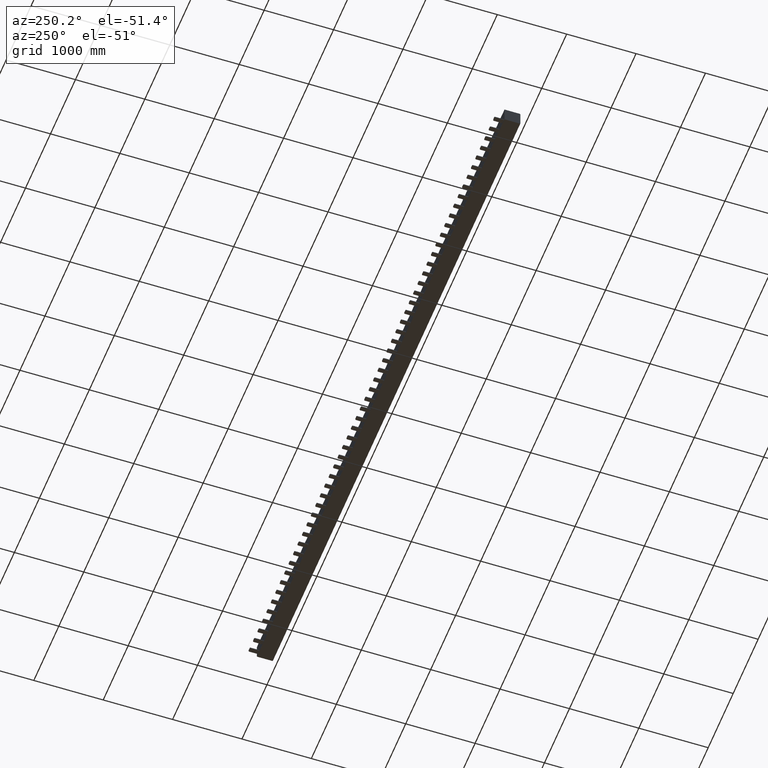
[diagram: clean part render]
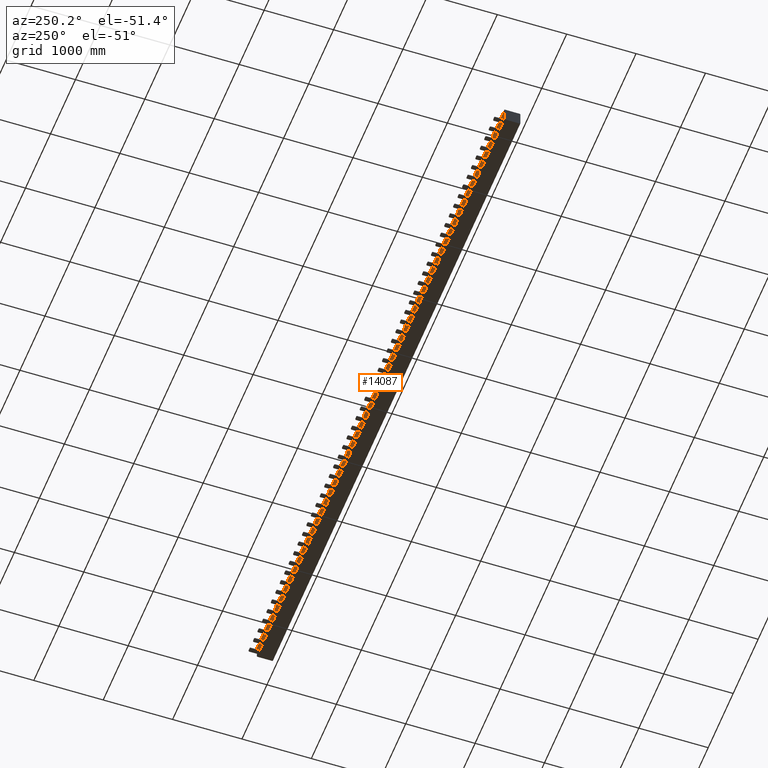
[diagram: same view with one face highlighted and labeled with its STEP entity id]
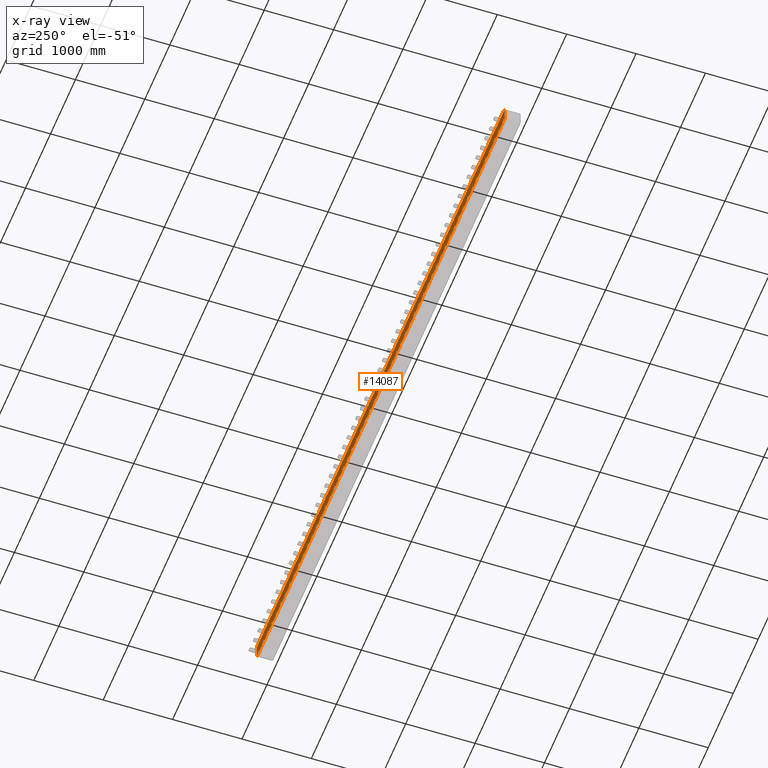
[diagram: x-ray of the same camera — body ghosted, the highlighted face saturated]
A machine part, auxiliary view. The second image highlights one B-rep face of the part: STEP entity #14087.
The next image is the same camera in x-ray: the body ghosted, the highlighted face saturated — about 0% of this face is hidden behind the body in this view.
In plain terms, the highlighted planar face has unit normal (0, 1, 0).
Its self-contained STEP definition (entity closure, byte-faithful):
#260=CARTESIAN_POINT('',(51.001694615488276,252.82479942039623,203.78551975218852));
#261=VERTEX_POINT('',#260);
#262=CARTESIAN_POINT('',(51.001694615488276,252.82479942039907,188.78551975218846));
#263=VERTEX_POINT('',#262);
#264=CARTESIAN_POINT('',(51.001694615488454,252.82479942039606,203.78551975218852));
#265=DIRECTION('',(0.0,1.951624E-013,-1.0));
#266=VECTOR('',#265,15.0);
#267=LINE('',#264,#266);
#268=EDGE_CURVE('',#261,#263,#267,.T.);
#291=CARTESIAN_POINT('',(-8.998305384511729,252.82479942039606,203.78551975218852));
#292=VERTEX_POINT('',#291);
#293=CARTESIAN_POINT('',(-8.998305384511729,252.82479942039606,203.78551975218852));
#294=DIRECTION('',(1.0,0.0,0.0));
#295=VECTOR('',#294,60.0);
#296=LINE('',#293,#295);
#297=EDGE_CURVE('',#292,#261,#296,.T.);
#317=CARTESIAN_POINT('',(-8.998305384511721,252.82479942039907,188.78551975218846));
#318=VERTEX_POINT('',#317);
#319=CARTESIAN_POINT('',(-8.998305384511699,252.82479942039907,188.78551975218846));
#320=DIRECTION('',(0.0,-1.932676E-013,1.0));
#321=VECTOR('',#320,15.0);
#322=LINE('',#319,#321);
#323=EDGE_CURVE('',#318,#292,#322,.T.);
#341=CARTESIAN_POINT('',(51.001694615488276,252.82479942039907,188.78551975218846));
#342=DIRECTION('',(-1.0,0.0,0.0));
#343=VECTOR('',#342,59.999999999999993);
#344=LINE('',#341,#343);
#345=EDGE_CURVE('',#263,#318,#344,.T.);
#360=CARTESIAN_POINT('',(9663.0016946154901,252.82479942040885,188.78551975218875));
#361=VERTEX_POINT('',#360);
#362=CARTESIAN_POINT('',(9603.0016946154901,252.82479942040885,188.78551975218875));
#363=VERTEX_POINT('',#362);
#364=CARTESIAN_POINT('',(9663.0016946154901,252.82479942040885,188.78551975218875));
#365=DIRECTION('',(-1.0,0.0,0.0));
#366=VECTOR('',#365,60.0);
#367=LINE('',#364,#366);
#368=EDGE_CURVE('',#361,#363,#367,.T.);
#418=CARTESIAN_POINT('',(9603.0016946154901,252.8247994204059,203.78551975218875));
#419=VERTEX_POINT('',#418);
#420=CARTESIAN_POINT('',(9603.0016946154901,252.82479942040882,188.78551975218875));
#421=DIRECTION('',(0.0,-1.932676E-013,1.0));
#422=VECTOR('',#421,15.0);
#423=LINE('',#420,#422);
#424=EDGE_CURVE('',#363,#419,#423,.T.);
#449=CARTESIAN_POINT('',(9663.0016946154901,252.82479942040601,203.78551975218875));
#450=VERTEX_POINT('',#449);
#451=CARTESIAN_POINT('',(9603.0016946154901,252.82479942040601,203.78551975218869));
#452=DIRECTION('',(1.0,0.0,0.0));
#453=VECTOR('',#452,60.0);
#454=LINE('',#451,#453);
#455=EDGE_CURVE('',#419,#450,#454,.T.);
#498=CARTESIAN_POINT('',(9663.0016946154901,252.82479942040601,203.78551975218875));
#499=DIRECTION('',(0.0,1.951624E-013,-1.0));
#500=VECTOR('',#499,15.0);
#501=LINE('',#498,#500);
#502=EDGE_CURVE('',#450,#361,#501,.T.);
#672=CARTESIAN_POINT('',(407.00169461548842,252.82479942039657,203.78551975218852));
#673=VERTEX_POINT('',#672);
#674=CARTESIAN_POINT('',(407.00169461548842,252.82479942039944,188.78551975218846));
#675=VERTEX_POINT('',#674);
#676=CARTESIAN_POINT('',(407.00169461548876,252.82479942039657,203.78551975218852));
#677=DIRECTION('',(0.0,1.932676E-013,-1.0));
#678=VECTOR('',#677,15.0);
#679=LINE('',#676,#678);
#680=EDGE_CURVE('',#673,#675,#679,.T.);
#703=CARTESIAN_POINT('',(347.00169461548819,252.82479942039657,203.78551975218852));
#704=VERTEX_POINT('',#703);
#705=CARTESIAN_POINT('',(347.00169461548819,252.82479942039657,203.78551975218852));
#706=DIRECTION('',(1.0,0.0,0.0));
#707=VECTOR('',#706,60.000000000000227);
#708=LINE('',#705,#707);
#709=EDGE_CURVE('',#704,#673,#708,.T.);
#729=CARTESIAN_POINT('',(347.00169461548819,252.82479942039944,188.78551975218846));
#730=VERTEX_POINT('',#729);
#731=CARTESIAN_POINT('',(347.00169461548853,252.82479942039939,188.78551975218846));
#732=DIRECTION('',(0.0,-1.951624E-013,1.0));
#733=VECTOR('',#732,15.0);
#734=LINE('',#731,#733);
#735=EDGE_CURVE('',#730,#704,#734,.T.);
#753=CARTESIAN_POINT('',(407.00169461548842,252.82479942039944,188.78551975218846));
#754=DIRECTION('',(-1.0,0.0,0.0));
#755=VECTOR('',#754,60.000000000000227);
#756=LINE('',#753,#755);
#757=EDGE_CURVE('',#675,#730,#756,.T.);
#772=CARTESIAN_POINT('',(9307.0016946154901,252.82479942040851,188.78551975218875));
#773=VERTEX_POINT('',#772);
#774=CARTESIAN_POINT('',(9247.0016946154901,252.82479942040851,188.78551975218875));
#775=VERTEX_POINT('',#774);
#776=CARTESIAN_POINT('',(9307.0016946154901,252.82479942040851,188.78551975218875));
#777=DIRECTION('',(-1.0,0.0,0.0));
#778=VECTOR('',#777,60.0);
#779=LINE('',#776,#778);
#780=EDGE_CURVE('',#773,#775,#779,.T.);
#830=CARTESIAN_POINT('',(9247.0016946154901,252.82479942040561,203.78551975218875));
#831=VERTEX_POINT('',#830);
#832=CARTESIAN_POINT('',(9247.0016946154901,252.82479942040848,188.78551975218875));
#833=DIRECTION('',(0.0,-1.951624E-013,1.0));
#834=VECTOR('',#833,15.0);
#835=LINE('',#832,#834);
#836=EDGE_CURVE('',#775,#831,#835,.T.);
#861=CARTESIAN_POINT('',(9307.0016946154901,252.82479942040564,203.78551975218875));
#862=VERTEX_POINT('',#861);
#863=CARTESIAN_POINT('',(9247.0016946154901,252.82479942040564,203.78551975218869));
#864=DIRECTION('',(1.0,0.0,0.0));
#865=VECTOR('',#864,60.0);
#866=LINE('',#863,#865);
#867=EDGE_CURVE('',#831,#862,#866,.T.);
#910=CARTESIAN_POINT('',(9307.0016946154901,252.82479942040564,203.78551975218875));
#911=DIRECTION('',(0.0,1.951624E-013,-1.0));
#912=VECTOR('',#911,15.0);
#913=LINE('',#910,#912);
#914=EDGE_CURVE('',#862,#773,#913,.T.);
#1084=CARTESIAN_POINT('',(763.00169461548819,252.82479942039691,203.78551975218852));
#1085=VERTEX_POINT('',#1084);
#1086=CARTESIAN_POINT('',(763.00169461548819,252.82479942039976,188.78551975218846));
#1087=VERTEX_POINT('',#1086);
#1088=CARTESIAN_POINT('',(763.00169461548819,252.82479942039691,203.78551975218852));
#1089=DIRECTION('',(0.0,1.951624E-013,-1.0));
#1090=VECTOR('',#1089,15.0);
#1091=LINE('',#1088,#1090);
#1092=EDGE_CURVE('',#1085,#1087,#1091,.T.);
#1115=CARTESIAN_POINT('',(703.00169461548819,252.82479942039691,203.78551975218852));
#1116=VERTEX_POINT('',#1115);
#1117=CARTESIAN_POINT('',(703.00169461548819,252.82479942039691,203.78551975218852));
#1118=DIRECTION('',(1.0,0.0,0.0));
#1119=VECTOR('',#1118,60.0);
#1120=LINE('',#1117,#1119);
#1121=EDGE_CURVE('',#1116,#1085,#1120,.T.);
#1141=CARTESIAN_POINT('',(703.00169461548819,252.82479942039976,188.78551975218846));
#1142=VERTEX_POINT('',#1141);
#1143=CARTESIAN_POINT('',(703.00169461548808,252.82479942039976,188.78551975218846));
#1144=DIRECTION('',(0.0,-1.951624E-013,1.0));
#1145=VECTOR('',#1144,15.0);
#1146=LINE('',#1143,#1145);
#1147=EDGE_CURVE('',#1142,#1116,#1146,.T.);
#1165=CARTESIAN_POINT('',(763.00169461548819,252.82479942039976,188.78551975218846));
#1166=DIRECTION('',(-1.0,0.0,0.0));
#1167=VECTOR('',#1166,60.0);
#1168=LINE('',#1165,#1167);
#1169=EDGE_CURVE('',#1087,#1142,#1168,.T.);
#1184=CARTESIAN_POINT('',(8951.0016946154901,252.82479942040817,188.78551975218875));
#1185=VERTEX_POINT('',#1184);
#1186=CARTESIAN_POINT('',(8891.0016946154901,252.82479942040808,188.78551975218875));
#1187=VERTEX_POINT('',#1186);
#1188=CARTESIAN_POINT('',(8951.0016946154901,252.82479942040817,188.78551975218875));
#1189=DIRECTION('',(-1.0,0.0,0.0));
#1190=VECTOR('',#1189,60.0);
#1191=LINE('',#1188,#1190);
#1192=EDGE_CURVE('',#1185,#1187,#1191,.T.);
#1242=CARTESIAN_POINT('',(8891.0016946154901,252.82479942040516,203.78551975218869));
#1243=VERTEX_POINT('',#1242);
#1244=CARTESIAN_POINT('',(8891.0016946154901,252.82479942040817,188.78551975218875));
#1245=DIRECTION('',(0.0,-1.932676E-013,1.0));
#1246=VECTOR('',#1245,14.999999999999915);
#1247=LINE('',#1244,#1246);
#1248=EDGE_CURVE('',#1187,#1243,#1247,.T.);
#1273=CARTESIAN_POINT('',(8951.0016946154901,252.82479942040527,203.78551975218875));
#1274=VERTEX_POINT('',#1273);
#1275=CARTESIAN_POINT('',(8891.0016946154901,252.82479942040516,203.78551975218869));
#1276=DIRECTION('',(1.0,0.0,0.0));
#1277=VECTOR('',#1276,60.0);
#1278=LINE('',#1275,#1277);
#1279=EDGE_CURVE('',#1243,#1274,#1278,.T.);
#1322=CARTESIAN_POINT('',(8951.0016946154901,252.82479942040516,203.78551975218875));
#1323=DIRECTION('',(0.0,1.951624E-013,-1.0));
#1324=VECTOR('',#1323,15.0);
#1325=LINE('',#1322,#1324);
#1326=EDGE_CURVE('',#1274,#1185,#1325,.T.);
#1496=CARTESIAN_POINT('',(1119.0016946154883,252.82479942039728,203.78551975218852));
#1497=VERTEX_POINT('',#1496);
#1498=CARTESIAN_POINT('',(1119.0016946154883,252.82479942040021,188.78551975218852));
#1499=VERTEX_POINT('',#1498);
#1500=CARTESIAN_POINT('',(1119.0016946154883,252.82479942039726,203.78551975218852));
#1501=DIRECTION('',(0.0,1.932676E-013,-1.0));
#1502=VECTOR('',#1501,15.0);
#1503=LINE('',#1500,#1502);
#1504=EDGE_CURVE('',#1497,#1499,#1503,.T.);
#1527=CARTESIAN_POINT('',(1059.0016946154883,252.82479942039726,203.78551975218852));
#1528=VERTEX_POINT('',#1527);
#1529=CARTESIAN_POINT('',(1059.0016946154883,252.82479942039728,203.78551975218852));
#1530=DIRECTION('',(1.0,0.0,0.0));
#1531=VECTOR('',#1530,60.000000000000227);
#1532=LINE('',#1529,#1531);
#1533=EDGE_CURVE('',#1528,#1497,#1532,.T.);
#1553=CARTESIAN_POINT('',(1059.0016946154883,252.82479942040013,188.78551975218846));
#1554=VERTEX_POINT('',#1553);
#1555=CARTESIAN_POINT('',(1059.0016946154883,252.82479942040013,188.78551975218846));
#1556=DIRECTION('',(0.0,-1.932676E-013,1.0));
#1557=VECTOR('',#1556,15.0);
#1558=LINE('',#1555,#1557);
#1559=EDGE_CURVE('',#1554,#1528,#1558,.T.);
#1577=CARTESIAN_POINT('',(1119.0016946154883,252.82479942040021,188.78551975218846));
#1578=DIRECTION('',(-1.0,0.0,0.0));
#1579=VECTOR('',#1578,60.000000000000227);
#1580=LINE('',#1577,#1579);
#1581=EDGE_CURVE('',#1499,#1554,#1580,.T.);
#1596=CARTESIAN_POINT('',(8595.0016946154901,252.82479942040777,188.78551975218875));
#1597=VERTEX_POINT('',#1596);
#1598=CARTESIAN_POINT('',(8535.0016946154919,252.82479942040777,188.78551975218875));
#1599=VERTEX_POINT('',#1598);
#1600=CARTESIAN_POINT('',(8595.0016946154901,252.82479942040789,188.78551975218875));
#1601=DIRECTION('',(-1.0,0.0,0.0));
#1602=VECTOR('',#1601,60.0);
#1603=LINE('',#1600,#1602);
#1604=EDGE_CURVE('',#1597,#1599,#1603,.T.);
#1654=CARTESIAN_POINT('',(8535.0016946154919,252.82479942040482,203.78551975218869));
#1655=VERTEX_POINT('',#1654);
#1656=CARTESIAN_POINT('',(8535.0016946154919,252.82479942040777,188.78551975218875));
#1657=DIRECTION('',(0.0,-1.951624E-013,1.0));
#1658=VECTOR('',#1657,14.999999999999915);
#1659=LINE('',#1656,#1658);
#1660=EDGE_CURVE('',#1599,#1655,#1659,.T.);
#1685=CARTESIAN_POINT('',(8595.0016946154901,252.82479942040493,203.78551975218875));
#1686=VERTEX_POINT('',#1685);
#1687=CARTESIAN_POINT('',(8535.0016946154919,252.82479942040493,203.78551975218869));
#1688=DIRECTION('',(1.0,0.0,0.0));
#1689=VECTOR('',#1688,60.0);
#1690=LINE('',#1687,#1689);
#1691=EDGE_CURVE('',#1655,#1686,#1690,.T.);
#1734=CARTESIAN_POINT('',(8595.0016946154901,252.82479942040493,203.78551975218875));
#1735=DIRECTION('',(0.0,1.932676E-013,-1.0));
#1736=VECTOR('',#1735,15.0);
#1737=LINE('',#1734,#1736);
#1738=EDGE_CURVE('',#1686,#1597,#1737,.T.);
#1908=CARTESIAN_POINT('',(1475.0016946154888,252.82479942039765,203.78551975218852));
#1909=VERTEX_POINT('',#1908);
#1910=CARTESIAN_POINT('',(1475.0016946154888,252.82479942040055,188.78551975218852));
#1911=VERTEX_POINT('',#1910);
#1912=CARTESIAN_POINT('',(1475.0016946154888,252.82479942039765,203.78551975218852));
#1913=DIRECTION('',(0.0,1.951624E-013,-1.0));
#1914=VECTOR('',#1913,15.0);
#1915=LINE('',#1912,#1914);
#1916=EDGE_CURVE('',#1909,#1911,#1915,.T.);
#1939=CARTESIAN_POINT('',(1415.0016946154888,252.82479942039765,203.78551975218852));
#1940=VERTEX_POINT('',#1939);
#1941=CARTESIAN_POINT('',(1415.0016946154888,252.82479942039765,203.78551975218852));
#1942=DIRECTION('',(1.0,0.0,0.0));
#1943=VECTOR('',#1942,60.0);
#1944=LINE('',#1941,#1943);
#1945=EDGE_CURVE('',#1940,#1909,#1944,.T.);
#1965=CARTESIAN_POINT('',(1415.0016946154888,252.8247994204005,188.78551975218852));
#1966=VERTEX_POINT('',#1965);
#1967=CARTESIAN_POINT('',(1415.0016946154888,252.8247994204005,188.78551975218852));
#1968=DIRECTION('',(0.0,-1.951624E-013,1.0));
#1969=VECTOR('',#1968,15.0);
#1970=LINE('',#1967,#1969);
#1971=EDGE_CURVE('',#1966,#1940,#1970,.T.);
#1989=CARTESIAN_POINT('',(1475.0016946154888,252.82479942040055,188.78551975218846));
#1990=DIRECTION('',(-1.0,0.0,0.0));
#1991=VECTOR('',#1990,60.0);
#1992=LINE('',#1989,#1991);
#1993=EDGE_CURVE('',#1911,#1966,#1992,.T.);
#2008=CARTESIAN_POINT('',(8239.0016946154901,252.82479942040743,188.78551975218875));
#2009=VERTEX_POINT('',#2008);
#2010=CARTESIAN_POINT('',(8179.0016946154892,252.8247994204074,188.78551975218875));
#2011=VERTEX_POINT('',#2010);
#2012=CARTESIAN_POINT('',(8239.0016946154901,252.82479942040743,188.78551975218866));
#2013=DIRECTION('',(-1.0,0.0,0.0));
#2014=VECTOR('',#2013,60.000000000000909);
#2015=LINE('',#2012,#2014);
#2016=EDGE_CURVE('',#2009,#2011,#2015,.T.);
#2066=CARTESIAN_POINT('',(8179.0016946154892,252.82479942040453,203.78551975218869));
#2067=VERTEX_POINT('',#2066);
#2068=CARTESIAN_POINT('',(8179.0016946154892,252.8247994204074,188.78551975218875));
#2069=DIRECTION('',(0.0,-1.951624E-013,1.0));
#2070=VECTOR('',#2069,14.999999999999915);
#2071=LINE('',#2068,#2070);
#2072=EDGE_CURVE('',#2011,#2067,#2071,.T.);
#2097=CARTESIAN_POINT('',(8239.0016946154901,252.82479942040456,203.78551975218875));
#2098=VERTEX_POINT('',#2097);
#2099=CARTESIAN_POINT('',(8179.0016946154892,252.82479942040456,203.78551975218863));
#2100=DIRECTION('',(1.0,0.0,0.0));
#2101=VECTOR('',#2100,60.000000000000909);
#2102=LINE('',#2099,#2101);
#2103=EDGE_CURVE('',#2067,#2098,#2102,.T.);
#2146=CARTESIAN_POINT('',(8239.0016946154901,252.82479942040456,203.78551975218875));
#2147=DIRECTION('',(0.0,1.932676E-013,-1.0));
#2148=VECTOR('',#2147,15.0);
#2149=LINE('',#2146,#2148);
#2150=EDGE_CURVE('',#2098,#2009,#2149,.T.);
#2320=CARTESIAN_POINT('',(1831.0016946154888,252.82479942039799,203.78551975218852));
#2321=VERTEX_POINT('',#2320);
#2322=CARTESIAN_POINT('',(1831.0016946154888,252.82479942040089,188.78551975218852));
#2323=VERTEX_POINT('',#2322);
#2324=CARTESIAN_POINT('',(1831.0016946154888,252.82479942039805,203.78551975218852));
#2325=DIRECTION('',(0.0,1.951624E-013,-1.0));
#2326=VECTOR('',#2325,15.0);
#2327=LINE('',#2324,#2326);
#2328=EDGE_CURVE('',#2321,#2323,#2327,.T.);
#2351=CARTESIAN_POINT('',(1771.0016946154892,252.82479942039799,203.78551975218852));
#2352=VERTEX_POINT('',#2351);
#2353=CARTESIAN_POINT('',(1771.0016946154892,252.82479942039799,203.78551975218852));
#2354=DIRECTION('',(1.0,0.0,0.0));
#2355=VECTOR('',#2354,59.999999999999773);
#2356=LINE('',#2353,#2355);
#2357=EDGE_CURVE('',#2352,#2321,#2356,.T.);
#2377=CARTESIAN_POINT('',(1771.0016946154892,252.82479942040086,188.78551975218852));
#2378=VERTEX_POINT('',#2377);
#2379=CARTESIAN_POINT('',(1771.0016946154892,252.82479942040086,188.78551975218852));
#2380=DIRECTION('',(0.0,-1.932676E-013,1.0));
#2381=VECTOR('',#2380,15.0);
#2382=LINE('',#2379,#2381);
#2383=EDGE_CURVE('',#2378,#2352,#2382,.T.);
#2401=CARTESIAN_POINT('',(1831.0016946154888,252.82479942040089,188.78551975218852));
#2402=DIRECTION('',(-1.0,0.0,0.0));
#2403=VECTOR('',#2402,59.999999999999773);
#2404=LINE('',#2401,#2403);
#2405=EDGE_CURVE('',#2323,#2378,#2404,.T.);
#2420=CARTESIAN_POINT('',(7883.001694615491,252.82479942040706,188.78551975218875));
#2421=VERTEX_POINT('',#2420);
#2422=CARTESIAN_POINT('',(7823.0016946154883,252.82479942040706,188.78551975218866));
#2423=VERTEX_POINT('',#2422);
#2424=CARTESIAN_POINT('',(7883.001694615491,252.82479942040706,188.78551975218866));
#2425=DIRECTION('',(-1.0,0.0,0.0));
#2426=VECTOR('',#2425,60.000000000002728);
#2427=LINE('',#2424,#2426);
#2428=EDGE_CURVE('',#2421,#2423,#2427,.T.);
#2478=CARTESIAN_POINT('',(7823.0016946154883,252.82479942040408,203.78551975218869));
#2479=VERTEX_POINT('',#2478);
#2480=CARTESIAN_POINT('',(7823.0016946154883,252.82479942040695,188.78551975218866));
#2481=DIRECTION('',(0.0,-1.951624E-013,1.0));
#2482=VECTOR('',#2481,15.000000000000028);
#2483=LINE('',#2480,#2482);
#2484=EDGE_CURVE('',#2423,#2479,#2483,.T.);
#2509=CARTESIAN_POINT('',(7883.001694615491,252.82479942040422,203.78551975218875));
#2510=VERTEX_POINT('',#2509);
#2511=CARTESIAN_POINT('',(7823.0016946154883,252.82479942040408,203.78551975218863));
#2512=DIRECTION('',(1.0,0.0,0.0));
#2513=VECTOR('',#2512,60.000000000001819);
#2514=LINE('',#2511,#2513);
#2515=EDGE_CURVE('',#2479,#2510,#2514,.T.);
#2558=CARTESIAN_POINT('',(7883.001694615491,252.82479942040422,203.78551975218875));
#2559=DIRECTION('',(0.0,1.932676E-013,-1.0));
#2560=VECTOR('',#2559,15.0);
#2561=LINE('',#2558,#2560);
#2562=EDGE_CURVE('',#2510,#2421,#2561,.T.);
#2732=CARTESIAN_POINT('',(2187.0016946154892,252.82479942039834,203.78551975218852));
#2733=VERTEX_POINT('',#2732);
#2734=CARTESIAN_POINT('',(2187.0016946154892,252.82479942040126,188.78551975218852));
#2735=VERTEX_POINT('',#2734);
#2736=CARTESIAN_POINT('',(2187.0016946154892,252.82479942039834,203.78551975218852));
#2737=DIRECTION('',(0.0,1.951624E-013,-1.0));
#2738=VECTOR('',#2737,15.0);
#2739=LINE('',#2736,#2738);
#2740=EDGE_CURVE('',#2733,#2735,#2739,.T.);
#2763=CARTESIAN_POINT('',(2127.0016946154892,252.82479942039834,203.78551975218852));
#2764=VERTEX_POINT('',#2763);
#2765=CARTESIAN_POINT('',(2127.0016946154892,252.82479942039834,203.78551975218852));
#2766=DIRECTION('',(1.0,0.0,0.0));
#2767=VECTOR('',#2766,60.0);
#2768=LINE('',#2765,#2767);
#2769=EDGE_CURVE('',#2764,#2733,#2768,.T.);
#2789=CARTESIAN_POINT('',(2127.0016946154892,252.82479942040123,188.78551975218852));
#2790=VERTEX_POINT('',#2789);
#2791=CARTESIAN_POINT('',(2127.0016946154892,252.82479942040123,188.78551975218852));
#2792=DIRECTION('',(0.0,-1.932676E-013,1.0));
#2793=VECTOR('',#2792,15.0);
#2794=LINE('',#2791,#2793);
#2795=EDGE_CURVE('',#2790,#2764,#2794,.T.);
#2813=CARTESIAN_POINT('',(2187.0016946154892,252.82479942040126,188.78551975218852));
#2814=DIRECTION('',(-1.0,0.0,0.0));
#2815=VECTOR('',#2814,60.0);
#2816=LINE('',#2813,#2815);
#2817=EDGE_CURVE('',#2735,#2790,#2816,.T.);
#2832=CARTESIAN_POINT('',(7527.001694615491,252.82479942040675,188.78551975218866));
#2833=VERTEX_POINT('',#2832);
#2834=CARTESIAN_POINT('',(7467.0016946154883,252.82479942040666,188.78551975218866));
#2835=VERTEX_POINT('',#2834);
#2836=CARTESIAN_POINT('',(7527.001694615491,252.82479942040675,188.78551975218866));
#2837=DIRECTION('',(-1.0,0.0,0.0));
#2838=VECTOR('',#2837,60.000000000002728);
#2839=LINE('',#2836,#2838);
#2840=EDGE_CURVE('',#2833,#2835,#2839,.T.);
#2890=CARTESIAN_POINT('',(7467.0016946154883,252.82479942040368,203.78551975218869));
#2891=VERTEX_POINT('',#2890);
#2892=CARTESIAN_POINT('',(7467.0016946154883,252.82479942040666,188.78551975218866));
#2893=DIRECTION('',(0.0,-1.951624E-013,1.0));
#2894=VECTOR('',#2893,15.000000000000028);
#2895=LINE('',#2892,#2894);
#2896=EDGE_CURVE('',#2835,#2891,#2895,.T.);
#2921=CARTESIAN_POINT('',(7527.001694615491,252.82479942040374,203.78551975218869));
#2922=VERTEX_POINT('',#2921);
#2923=CARTESIAN_POINT('',(7467.0016946154883,252.82479942040385,203.78551975218863));
#2924=DIRECTION('',(1.0,0.0,0.0));
#2925=VECTOR('',#2924,60.000000000001819);
#2926=LINE('',#2923,#2925);
#2927=EDGE_CURVE('',#2891,#2922,#2926,.T.);
#2970=CARTESIAN_POINT('',(7527.001694615491,252.82479942040374,203.78551975218869));
#2971=DIRECTION('',(0.0,1.951624E-013,-1.0));
#2972=VECTOR('',#2971,15.0);
#2973=LINE('',#2970,#2972);
#2974=EDGE_CURVE('',#2922,#2833,#2973,.T.);
#3144=CARTESIAN_POINT('',(2543.0016946154878,252.82479942039873,203.78551975218852));
#3145=VERTEX_POINT('',#3144);
#3146=CARTESIAN_POINT('',(2543.0016946154878,252.82479942040163,188.78551975218852));
#3147=VERTEX_POINT('',#3146);
#3148=CARTESIAN_POINT('',(2543.0016946154892,252.82479942039873,203.78551975218852));
#3149=DIRECTION('',(0.0,1.951624E-013,-1.0));
#3150=VECTOR('',#3149,15.0);
#3151=LINE('',#3148,#3150);
#3152=EDGE_CURVE('',#3145,#3147,#3151,.T.);
#3175=CARTESIAN_POINT('',(2483.0016946154883,252.8247994203987,203.78551975218852));
#3176=VERTEX_POINT('',#3175);
#3177=CARTESIAN_POINT('',(2483.0016946154883,252.82479942039873,203.78551975218852));
#3178=DIRECTION('',(1.0,0.0,0.0));
#3179=VECTOR('',#3178,60.0);
#3180=LINE('',#3177,#3179);
#3181=EDGE_CURVE('',#3176,#3145,#3180,.T.);
#3201=CARTESIAN_POINT('',(2483.0016946154883,252.82479942040155,188.78551975218852));
#3202=VERTEX_POINT('',#3201);
#3203=CARTESIAN_POINT('',(2483.0016946154883,252.82479942040155,188.78551975218852));
#3204=DIRECTION('',(0.0,-1.932676E-013,1.0));
#3205=VECTOR('',#3204,15.0);
#3206=LINE('',#3203,#3205);
#3207=EDGE_CURVE('',#3202,#3176,#3206,.T.);
#3225=CARTESIAN_POINT('',(2543.0016946154878,252.82479942040163,188.78551975218852));
#3226=DIRECTION('',(-1.0,0.0,0.0));
#3227=VECTOR('',#3226,60.0);
#3228=LINE('',#3225,#3227);
#3229=EDGE_CURVE('',#3147,#3202,#3228,.T.);
#3244=CARTESIAN_POINT('',(7171.0016946154901,252.82479942040635,188.78551975218866));
#3245=VERTEX_POINT('',#3244);
#3246=CARTESIAN_POINT('',(7111.0016946154919,252.82479942040629,188.78551975218863));
#3247=VERTEX_POINT('',#3246);
#3248=CARTESIAN_POINT('',(7171.0016946154901,252.82479942040635,188.78551975218866));
#3249=DIRECTION('',(-1.0,0.0,0.0));
#3250=VECTOR('',#3249,59.999999999999091);
#3251=LINE('',#3248,#3250);
#3252=EDGE_CURVE('',#3245,#3247,#3251,.T.);
#3302=CARTESIAN_POINT('',(7111.0016946154919,252.82479942040337,203.78551975218869));
#3303=VERTEX_POINT('',#3302);
#3304=CARTESIAN_POINT('',(7111.0016946154919,252.82479942040629,188.78551975218863));
#3305=DIRECTION('',(0.0,-1.951624E-013,1.0));
#3306=VECTOR('',#3305,15.000000000000057);
#3307=LINE('',#3304,#3306);
#3308=EDGE_CURVE('',#3247,#3303,#3307,.T.);
#3333=CARTESIAN_POINT('',(7171.0016946154901,252.82479942040337,203.78551975218869));
#3334=VERTEX_POINT('',#3333);
#3335=CARTESIAN_POINT('',(7111.0016946154919,252.82479942040337,203.78551975218863));
#3336=DIRECTION('',(1.0,0.0,0.0));
#3337=VECTOR('',#3336,59.999999999999091);
#3338=LINE('',#3335,#3337);
#3339=EDGE_CURVE('',#3303,#3334,#3338,.T.);
#3382=CARTESIAN_POINT('',(7171.0016946154901,252.82479942040351,203.78551975218869));
#3383=DIRECTION('',(0.0,1.951624E-013,-1.0));
#3384=VECTOR('',#3383,15.0);
#3385=LINE('',#3382,#3384);
#3386=EDGE_CURVE('',#3334,#3245,#3385,.T.);
#3556=CARTESIAN_POINT('',(2899.0016946154892,252.82479942039907,203.78551975218858));
#3557=VERTEX_POINT('',#3556);
#3558=CARTESIAN_POINT('',(2899.0016946154892,252.82479942040203,188.78551975218863));
#3559=VERTEX_POINT('',#3558);
#3560=CARTESIAN_POINT('',(2899.0016946154892,252.82479942039907,203.78551975218858));
#3561=DIRECTION('',(0.0,1.951624E-013,-1.0));
#3562=VECTOR('',#3561,15.0);
#3563=LINE('',#3560,#3562);
#3564=EDGE_CURVE('',#3557,#3559,#3563,.T.);
#3587=CARTESIAN_POINT('',(2839.0016946154892,252.82479942039907,203.78551975218852));
#3588=VERTEX_POINT('',#3587);
#3589=CARTESIAN_POINT('',(2839.0016946154892,252.82479942039907,203.78551975218852));
#3590=DIRECTION('',(1.0,0.0,0.0));
#3591=VECTOR('',#3590,60.0);
#3592=LINE('',#3589,#3591);
#3593=EDGE_CURVE('',#3588,#3557,#3592,.T.);
#3613=CARTESIAN_POINT('',(2839.0016946154892,252.82479942040203,188.78551975218852));
#3614=VERTEX_POINT('',#3613);
#3615=CARTESIAN_POINT('',(2839.0016946154878,252.82479942040192,188.78551975218852));
#3616=DIRECTION('',(0.0,-1.932676E-013,1.0));
#3617=VECTOR('',#3616,15.0);
#3618=LINE('',#3615,#3617);
#3619=EDGE_CURVE('',#3614,#3588,#3618,.T.);
#3637=CARTESIAN_POINT('',(2899.0016946154892,252.82479942040203,188.78551975218863));
#3638=DIRECTION('',(-1.0,0.0,0.0));
#3639=VECTOR('',#3638,60.0);
#3640=LINE('',#3637,#3639);
#3641=EDGE_CURVE('',#3559,#3614,#3640,.T.);
#3656=CARTESIAN_POINT('',(6815.0016946154919,252.82479942040601,188.78551975218863));
#3657=VERTEX_POINT('',#3656);
#3658=CARTESIAN_POINT('',(6755.0016946154892,252.8247994204059,188.78551975218863));
#3659=VERTEX_POINT('',#3658);
#3660=CARTESIAN_POINT('',(6815.0016946154919,252.82479942040601,188.78551975218863));
#3661=DIRECTION('',(-1.0,0.0,0.0));
#3662=VECTOR('',#3661,60.000000000001819);
#3663=LINE('',#3660,#3662);
#3664=EDGE_CURVE('',#3657,#3659,#3663,.T.);
#3714=CARTESIAN_POINT('',(6755.0016946154892,252.824799420403,203.78551975218863));
#3715=VERTEX_POINT('',#3714);
#3716=CARTESIAN_POINT('',(6755.0016946154892,252.82479942040598,188.78551975218863));
#3717=DIRECTION('',(0.0,-1.951624E-013,1.0));
#3718=VECTOR('',#3717,15.0);
#3719=LINE('',#3716,#3718);
#3720=EDGE_CURVE('',#3659,#3715,#3719,.T.);
#3745=CARTESIAN_POINT('',(6815.0016946154919,252.82479942040305,203.78551975218869));
#3746=VERTEX_POINT('',#3745);
#3747=CARTESIAN_POINT('',(6755.0016946154892,252.82479942040305,203.78551975218863));
#3748=DIRECTION('',(1.0,0.0,0.0));
#3749=VECTOR('',#3748,60.000000000002728);
#3750=LINE('',#3747,#3749);
#3751=EDGE_CURVE('',#3715,#3746,#3750,.T.);
#3794=CARTESIAN_POINT('',(6815.0016946154919,252.82479942040305,203.78551975218869));
#3795=DIRECTION('',(0.0,1.951624E-013,-1.0));
#3796=VECTOR('',#3795,15.000000000000057);
#3797=LINE('',#3794,#3796);
#3798=EDGE_CURVE('',#3746,#3657,#3797,.T.);
#3968=CARTESIAN_POINT('',(3255.0016946154892,252.82479942039944,203.78551975218858));
#3969=VERTEX_POINT('',#3968);
#3970=CARTESIAN_POINT('',(3255.0016946154892,252.8247994204024,188.78551975218863));
#3971=VERTEX_POINT('',#3970);
#3972=CARTESIAN_POINT('',(3255.0016946154892,252.82479942039944,203.78551975218858));
#3973=DIRECTION('',(0.0,1.951624E-013,-1.0));
#3974=VECTOR('',#3973,15.0);
#3975=LINE('',#3972,#3974);
#3976=EDGE_CURVE('',#3969,#3971,#3975,.T.);
#3999=CARTESIAN_POINT('',(3195.0016946154892,252.82479942039939,203.78551975218852));
#4000=VERTEX_POINT('',#3999);
#4001=CARTESIAN_POINT('',(3195.0016946154892,252.82479942039944,203.78551975218852));
#4002=DIRECTION('',(1.0,0.0,0.0));
#4003=VECTOR('',#4002,60.0);
#4004=LINE('',#4001,#4003);
#4005=EDGE_CURVE('',#4000,#3969,#4004,.T.);
#4025=CARTESIAN_POINT('',(3195.0016946154892,252.82479942040231,188.78551975218863));
#4026=VERTEX_POINT('',#4025);
#4027=CARTESIAN_POINT('',(3195.0016946154892,252.82479942040226,188.78551975218863));
#4028=DIRECTION('',(0.0,-1.951624E-013,1.0));
#4029=VECTOR('',#4028,14.999999999999915);
#4030=LINE('',#4027,#4029);
#4031=EDGE_CURVE('',#4026,#4000,#4030,.T.);
#4049=CARTESIAN_POINT('',(3255.0016946154892,252.8247994204024,188.78551975218863));
#4050=DIRECTION('',(-1.0,0.0,0.0));
#4051=VECTOR('',#4050,60.0);
#4052=LINE('',#4049,#4051);
#4053=EDGE_CURVE('',#3971,#4026,#4052,.T.);
#4068=CARTESIAN_POINT('',(6459.0016946154892,252.82479942040564,188.78551975218863));
#4069=VERTEX_POINT('',#4068);
#4070=CARTESIAN_POINT('',(6399.0016946154901,252.82479942040561,188.78551975218863));
#4071=VERTEX_POINT('',#4070);
#4072=CARTESIAN_POINT('',(6459.0016946154892,252.82479942040564,188.78551975218863));
#4073=DIRECTION('',(-1.0,0.0,0.0));
#4074=VECTOR('',#4073,59.999999999999091);
#4075=LINE('',#4072,#4074);
#4076=EDGE_CURVE('',#4069,#4071,#4075,.T.);
#4126=CARTESIAN_POINT('',(6399.0016946154901,252.8247994204026,203.78551975218863));
#4127=VERTEX_POINT('',#4126);
#4128=CARTESIAN_POINT('',(6399.0016946154901,252.82479942040564,188.78551975218863));
#4129=DIRECTION('',(0.0,-1.951624E-013,1.0));
#4130=VECTOR('',#4129,15.0);
#4131=LINE('',#4128,#4130);
#4132=EDGE_CURVE('',#4071,#4127,#4131,.T.);
#4157=CARTESIAN_POINT('',(6459.0016946154892,252.82479942040268,203.78551975218869));
#4158=VERTEX_POINT('',#4157);
#4159=CARTESIAN_POINT('',(6399.0016946154901,252.82479942040268,203.78551975218863));
#4160=DIRECTION('',(1.0,0.0,0.0));
#4161=VECTOR('',#4160,59.999999999999091);
#4162=LINE('',#4159,#4161);
#4163=EDGE_CURVE('',#4127,#4158,#4162,.T.);
#4206=CARTESIAN_POINT('',(6459.0016946154892,252.82479942040268,203.78551975218869));
#4207=DIRECTION('',(0.0,1.951624E-013,-1.0));
#4208=VECTOR('',#4207,15.000000000000057);
#4209=LINE('',#4206,#4208);
#4210=EDGE_CURVE('',#4158,#4069,#4209,.T.);
#4380=CARTESIAN_POINT('',(3611.0016946154892,252.82479942039976,203.78551975218858));
#4381=VERTEX_POINT('',#4380);
#4382=CARTESIAN_POINT('',(3611.0016946154892,252.82479942040268,188.78551975218863));
#4383=VERTEX_POINT('',#4382);
#4384=CARTESIAN_POINT('',(3611.0016946154892,252.82479942039976,203.78551975218858));
#4385=DIRECTION('',(0.0,1.951624E-013,-1.0));
#4386=VECTOR('',#4385,14.999999999999972);
#4387=LINE('',#4384,#4386);
#4388=EDGE_CURVE('',#4381,#4383,#4387,.T.);
#4411=CARTESIAN_POINT('',(3551.0016946154901,252.82479942039976,203.78551975218852));
#4412=VERTEX_POINT('',#4411);
#4413=CARTESIAN_POINT('',(3551.0016946154901,252.82479942039976,203.78551975218852));
#4414=DIRECTION('',(1.0,0.0,0.0));
#4415=VECTOR('',#4414,59.999999999999545);
#4416=LINE('',#4413,#4415);
#4417=EDGE_CURVE('',#4412,#4381,#4416,.T.);
#4437=CARTESIAN_POINT('',(3551.0016946154901,252.8247994204026,188.78551975218863));
#4438=VERTEX_POINT('',#4437);
#4439=CARTESIAN_POINT('',(3551.0016946154901,252.8247994204026,188.78551975218863));
#4440=DIRECTION('',(0.0,-1.932676E-013,1.0));
#4441=VECTOR('',#4440,14.999999999999915);
#4442=LINE('',#4439,#4441);
#4443=EDGE_CURVE('',#4438,#4412,#4442,.T.);
#4461=CARTESIAN_POINT('',(3611.0016946154892,252.82479942040277,188.78551975218863));
#4462=DIRECTION('',(-1.0,0.0,0.0));
#4463=VECTOR('',#4462,59.999999999999545);
#4464=LINE('',#4461,#4463);
#4465=EDGE_CURVE('',#4383,#4438,#4464,.T.);
#4480=CARTESIAN_POINT('',(6103.0016946154901,252.82479942040527,188.78551975218863));
#4481=VERTEX_POINT('',#4480);
#4482=CARTESIAN_POINT('',(6043.0016946154883,252.82479942040516,188.78551975218863));
#4483=VERTEX_POINT('',#4482);
#4484=CARTESIAN_POINT('',(6103.0016946154901,252.82479942040527,188.78551975218863));
#4485=DIRECTION('',(-1.0,0.0,0.0));
#4486=VECTOR('',#4485,60.000000000000909);
#4487=LINE('',#4484,#4486);
#4488=EDGE_CURVE('',#4481,#4483,#4487,.T.);
#4538=CARTESIAN_POINT('',(6043.0016946154883,252.82479942040231,203.78551975218863));
#4539=VERTEX_POINT('',#4538);
#4540=CARTESIAN_POINT('',(6043.0016946154883,252.82479942040516,188.78551975218863));
#4541=DIRECTION('',(0.0,-1.951624E-013,1.0));
#4542=VECTOR('',#4541,15.0);
#4543=LINE('',#4540,#4542);
#4544=EDGE_CURVE('',#4483,#4539,#4543,.T.);
#4569=CARTESIAN_POINT('',(6103.0016946154901,252.8247994204024,203.78551975218869));
#4570=VERTEX_POINT('',#4569);
#4571=CARTESIAN_POINT('',(6043.0016946154883,252.8247994204024,203.78551975218863));
#4572=DIRECTION('',(1.0,0.0,0.0));
#4573=VECTOR('',#4572,60.000000000000909);
#4574=LINE('',#4571,#4573);
#4575=EDGE_CURVE('',#4539,#4570,#4574,.T.);
#4618=CARTESIAN_POINT('',(6103.0016946154901,252.8247994204024,203.78551975218869));
#4619=DIRECTION('',(0.0,1.932676E-013,-1.0));
#4620=VECTOR('',#4619,15.000000000000057);
#4621=LINE('',#4618,#4620);
#4622=EDGE_CURVE('',#4570,#4481,#4621,.T.);
#4792=CARTESIAN_POINT('',(3967.0016946154897,252.82479942040021,203.78551975218858));
#4793=VERTEX_POINT('',#4792);
#4794=CARTESIAN_POINT('',(3967.0016946154897,252.82479942040305,188.78551975218863));
#4795=VERTEX_POINT('',#4794);
#4796=CARTESIAN_POINT('',(3967.0016946154897,252.82479942040013,203.78551975218858));
#4797=DIRECTION('',(0.0,1.951624E-013,-1.0));
#4798=VECTOR('',#4797,14.999999999999972);
#4799=LINE('',#4796,#4798);
#4800=EDGE_CURVE('',#4793,#4795,#4799,.T.);
#4823=CARTESIAN_POINT('',(3907.0016946154897,252.82479942040013,203.78551975218858));
#4824=VERTEX_POINT('',#4823);
#4825=CARTESIAN_POINT('',(3907.0016946154897,252.82479942040013,203.78551975218852));
#4826=DIRECTION('',(1.0,0.0,0.0));
#4827=VECTOR('',#4826,60.0);
#4828=LINE('',#4825,#4827);
#4829=EDGE_CURVE('',#4824,#4793,#4828,.T.);
#4849=CARTESIAN_POINT('',(3907.0016946154897,252.824799420403,188.78551975218863));
#4850=VERTEX_POINT('',#4849);
#4851=CARTESIAN_POINT('',(3907.0016946154897,252.82479942040311,188.78551975218863));
#4852=DIRECTION('',(0.0,-1.951624E-013,1.0));
#4853=VECTOR('',#4852,14.999999999999972);
#4854=LINE('',#4851,#4853);
#4855=EDGE_CURVE('',#4850,#4824,#4854,.T.);
#4873=CARTESIAN_POINT('',(3967.0016946154897,252.82479942040311,188.78551975218863));
#4874=DIRECTION('',(-1.0,0.0,0.0));
#4875=VECTOR('',#4874,60.0);
#4876=LINE('',#4873,#4875);
#4877=EDGE_CURVE('',#4795,#4850,#4876,.T.);
#4892=CARTESIAN_POINT('',(5747.0016946154901,252.82479942040493,188.78551975218863));
#4893=VERTEX_POINT('',#4892);
#4894=CARTESIAN_POINT('',(5687.0016946154901,252.82479942040482,188.78551975218863));
#4895=VERTEX_POINT('',#4894);
#4896=CARTESIAN_POINT('',(5747.0016946154901,252.82479942040493,188.78551975218863));
#4897=DIRECTION('',(-1.0,0.0,0.0));
#4898=VECTOR('',#4897,60.0);
#4899=LINE('',#4896,#4898);
#4900=EDGE_CURVE('',#4893,#4895,#4899,.T.);
#4950=CARTESIAN_POINT('',(5687.0016946154901,252.82479942040192,203.78551975218863));
#4951=VERTEX_POINT('',#4950);
#4952=CARTESIAN_POINT('',(5687.0016946154901,252.82479942040482,188.78551975218863));
#4953=DIRECTION('',(0.0,-1.951624E-013,1.0));
#4954=VECTOR('',#4953,15.0);
#4955=LINE('',#4952,#4954);
#4956=EDGE_CURVE('',#4895,#4951,#4955,.T.);
#4981=CARTESIAN_POINT('',(5747.0016946154901,252.82479942040203,203.78551975218863));
#4982=VERTEX_POINT('',#4981);
#4983=CARTESIAN_POINT('',(5687.0016946154901,252.82479942040203,203.78551975218863));
#4984=DIRECTION('',(1.0,0.0,0.0));
#4985=VECTOR('',#4984,60.0);
#4986=LINE('',#4983,#4985);
#4987=EDGE_CURVE('',#4951,#4982,#4986,.T.);
#5030=CARTESIAN_POINT('',(5747.0016946154901,252.82479942040209,203.78551975218863));
#5031=DIRECTION('',(0.0,1.932676E-013,-1.0));
#5032=VECTOR('',#5031,15.0);
#5033=LINE('',#5030,#5032);
#5034=EDGE_CURVE('',#4982,#4893,#5033,.T.);
#5204=CARTESIAN_POINT('',(4323.0016946154901,252.8247994204005,203.78551975218863));
#5205=VERTEX_POINT('',#5204);
#5206=CARTESIAN_POINT('',(4323.0016946154901,252.82479942040337,188.78551975218863));
#5207=VERTEX_POINT('',#5206);
#5208=CARTESIAN_POINT('',(4323.0016946154901,252.8247994204005,203.78551975218863));
#5209=DIRECTION('',(0.0,1.932676E-013,-1.0));
#5210=VECTOR('',#5209,15.0);
#5211=LINE('',#5208,#5210);
#5212=EDGE_CURVE('',#5205,#5207,#5211,.T.);
#5235=CARTESIAN_POINT('',(4263.0016946154901,252.8247994204005,203.78551975218858));
#5236=VERTEX_POINT('',#5235);
#5237=CARTESIAN_POINT('',(4263.0016946154901,252.8247994204005,203.78551975218858));
#5238=DIRECTION('',(1.0,0.0,0.0));
#5239=VECTOR('',#5238,60.0);
#5240=LINE('',#5237,#5239);
#5241=EDGE_CURVE('',#5236,#5205,#5240,.T.);
#5261=CARTESIAN_POINT('',(4263.0016946154901,252.82479942040337,188.78551975218863));
#5262=VERTEX_POINT('',#5261);
#5263=CARTESIAN_POINT('',(4263.0016946154901,252.82479942040337,188.78551975218863));
#5264=DIRECTION('',(0.0,-1.932676E-013,1.0));
#5265=VECTOR('',#5264,14.999999999999972);
#5266=LINE('',#5263,#5265);
#5267=EDGE_CURVE('',#5262,#5236,#5266,.T.);
#5285=CARTESIAN_POINT('',(4323.0016946154901,252.82479942040351,188.78551975218863));
#5286=DIRECTION('',(-1.0,0.0,0.0));
#5287=VECTOR('',#5286,60.0);
#5288=LINE('',#5285,#5287);
#5289=EDGE_CURVE('',#5207,#5262,#5288,.T.);
#5304=CARTESIAN_POINT('',(5391.0016946154901,252.82479942040456,188.78551975218863));
#5305=VERTEX_POINT('',#5304);
#5306=CARTESIAN_POINT('',(5331.0016946154883,252.82479942040453,188.78551975218863));
#5307=VERTEX_POINT('',#5306);
#5308=CARTESIAN_POINT('',(5391.0016946154901,252.82479942040456,188.78551975218863));
#5309=DIRECTION('',(-1.0,0.0,0.0));
#5310=VECTOR('',#5309,60.000000000001819);
#5311=LINE('',#5308,#5310);
#5312=EDGE_CURVE('',#5305,#5307,#5311,.T.);
#5362=CARTESIAN_POINT('',(5331.0016946154883,252.82479942040155,203.78551975218858));
#5363=VERTEX_POINT('',#5362);
#5364=CARTESIAN_POINT('',(5331.0016946154883,252.82479942040453,188.78551975218863));
#5365=DIRECTION('',(0.0,-1.951624E-013,1.0));
#5366=VECTOR('',#5365,14.999999999999972);
#5367=LINE('',#5364,#5366);
#5368=EDGE_CURVE('',#5307,#5363,#5367,.T.);
#5393=CARTESIAN_POINT('',(5391.0016946154901,252.82479942040163,203.78551975218863));
#5394=VERTEX_POINT('',#5393);
#5395=CARTESIAN_POINT('',(5331.0016946154883,252.82479942040163,203.78551975218858));
#5396=DIRECTION('',(1.0,0.0,0.0));
#5397=VECTOR('',#5396,60.000000000001819);
#5398=LINE('',#5395,#5397);
#5399=EDGE_CURVE('',#5363,#5394,#5398,.T.);
#5442=CARTESIAN_POINT('',(5391.0016946154901,252.82479942040163,203.78551975218863));
#5443=DIRECTION('',(0.0,1.951624E-013,-1.0));
#5444=VECTOR('',#5443,15.0);
#5445=LINE('',#5442,#5444);
#5446=EDGE_CURVE('',#5394,#5305,#5445,.T.);
#5616=CARTESIAN_POINT('',(4679.0016946154892,252.82479942040089,203.78551975218863));
#5617=VERTEX_POINT('',#5616);
#5618=CARTESIAN_POINT('',(4679.0016946154892,252.82479942040385,188.78551975218863));
#5619=VERTEX_POINT('',#5618);
#5620=CARTESIAN_POINT('',(4679.0016946154892,252.82479942040089,203.78551975218863));
#5621=DIRECTION('',(0.0,1.951624E-013,-1.0));
#5622=VECTOR('',#5621,15.0);
#5623=LINE('',#5620,#5622);
#5624=EDGE_CURVE('',#5617,#5619,#5623,.T.);
#5647=CARTESIAN_POINT('',(4619.0016946154892,252.82479942040086,203.78551975218858));
#5648=VERTEX_POINT('',#5647);
#5649=CARTESIAN_POINT('',(4619.0016946154892,252.82479942040089,203.78551975218858));
#5650=DIRECTION('',(1.0,0.0,0.0));
#5651=VECTOR('',#5650,60.0);
#5652=LINE('',#5649,#5651);
#5653=EDGE_CURVE('',#5648,#5617,#5652,.T.);
#5673=CARTESIAN_POINT('',(4619.0016946154892,252.82479942040374,188.78551975218863));
#5674=VERTEX_POINT('',#5673);
#5675=CARTESIAN_POINT('',(4619.0016946154892,252.82479942040374,188.78551975218863));
#5676=DIRECTION('',(0.0,-1.951624E-013,1.0));
#5677=VECTOR('',#5676,14.999999999999972);
#5678=LINE('',#5675,#5677);
#5679=EDGE_CURVE('',#5674,#5648,#5678,.T.);
#5697=CARTESIAN_POINT('',(4679.0016946154892,252.82479942040385,188.78551975218863));
#5698=DIRECTION('',(-1.0,0.0,0.0));
#5699=VECTOR('',#5698,60.0);
#5700=LINE('',#5697,#5699);
#5701=EDGE_CURVE('',#5619,#5674,#5700,.T.);
#5716=CARTESIAN_POINT('',(5035.0016946154892,252.82479942040422,188.78551975218863));
#5717=VERTEX_POINT('',#5716);
#5718=CARTESIAN_POINT('',(4975.0016946154892,252.82479942040408,188.78551975218863));
#5719=VERTEX_POINT('',#5718);
#5720=CARTESIAN_POINT('',(5035.0016946154892,252.82479942040422,188.78551975218863));
#5721=DIRECTION('',(-1.0,0.0,0.0));
#5722=VECTOR('',#5721,60.0);
#5723=LINE('',#5720,#5722);
#5724=EDGE_CURVE('',#5717,#5719,#5723,.T.);
#5774=CARTESIAN_POINT('',(4975.0016946154892,252.82479942040123,203.78551975218858));
#5775=VERTEX_POINT('',#5774);
#5776=CARTESIAN_POINT('',(4975.0016946154892,252.82479942040408,188.78551975218863));
#5777=DIRECTION('',(0.0,-1.932676E-013,1.0));
#5778=VECTOR('',#5777,14.999999999999972);
#5779=LINE('',#5776,#5778);
#5780=EDGE_CURVE('',#5719,#5775,#5779,.T.);
#5805=CARTESIAN_POINT('',(5035.0016946154892,252.82479942040126,203.78551975218863));
#5806=VERTEX_POINT('',#5805);
#5807=CARTESIAN_POINT('',(4975.0016946154892,252.82479942040123,203.78551975218858));
#5808=DIRECTION('',(1.0,0.0,0.0));
#5809=VECTOR('',#5808,60.0);
#5810=LINE('',#5807,#5809);
#5811=EDGE_CURVE('',#5775,#5806,#5810,.T.);
#5854=CARTESIAN_POINT('',(5035.0016946154892,252.82479942040126,203.78551975218863));
#5855=DIRECTION('',(0.0,1.951624E-013,-1.0));
#5856=VECTOR('',#5855,15.0);
#5857=LINE('',#5854,#5856);
#5858=EDGE_CURVE('',#5806,#5717,#5857,.T.);
#5922=CARTESIAN_POINT('',(9485.0016946154465,252.82479942040828,190.87264127800603));
#5923=VERTEX_POINT('',#5922);
#5924=CARTESIAN_POINT('',(9425.0016946154465,252.82479942040828,190.87264127800609));
#5925=VERTEX_POINT('',#5924);
#5926=CARTESIAN_POINT('',(9485.0016946154465,252.82479942040828,190.87264127800609));
#5927=DIRECTION('',(-1.0,0.0,0.0));
#5928=VECTOR('',#5927,60.0);
#5929=LINE('',#5926,#5928);
#5930=EDGE_CURVE('',#5923,#5925,#5929,.T.);
#5974=CARTESIAN_POINT('',(9425.0016946154465,252.82479942176792,213.78551975218988));
#5975=VERTEX_POINT('',#5974);
#5983=CARTESIAN_POINT('',(9485.0016946154483,252.82479942176792,213.78551975218988));
#5984=VERTEX_POINT('',#5983);
#5985=CARTESIAN_POINT('',(9485.0016946154483,252.82479942176792,213.78551975218988));
#5986=DIRECTION('',(-1.0,0.0,0.0));
#5987=VECTOR('',#5986,60.000000000001819);
#5988=LINE('',#5985,#5987);
#5989=EDGE_CURVE('',#5984,#5975,#5988,.T.);
#6006=CARTESIAN_POINT('',(9485.0016946154483,252.82479942040385,213.78551975218988));
#6007=DIRECTION('',(0.0,1.935063E-013,-1.0));
#6008=VECTOR('',#6007,22.912878474183856);
#6009=LINE('',#6006,#6008);
#6010=EDGE_CURVE('',#5984,#5923,#6009,.T.);
#6179=CARTESIAN_POINT('',(9425.0016946154465,252.82479942040828,190.87264127800609));
#6180=DIRECTION('',(0.0,-1.935063E-013,1.0));
#6181=VECTOR('',#6180,22.912878474183799);
#6182=LINE('',#6179,#6181);
#6183=EDGE_CURVE('',#5925,#5975,#6182,.T.);
#6198=CARTESIAN_POINT('',(9069.0016946154428,252.82479942040791,190.87264127800623));
#6199=VERTEX_POINT('',#6198);
#6200=CARTESIAN_POINT('',(9069.0016946154428,252.82479942176792,213.78551975218983));
#6201=VERTEX_POINT('',#6200);
#6202=CARTESIAN_POINT('',(9069.0016946154428,252.82479942040789,190.87264127800623));
#6203=DIRECTION('',(0.0,-1.935063E-013,1.0));
#6204=VECTOR('',#6203,22.912878474183628);
#6205=LINE('',#6202,#6204);
#6206=EDGE_CURVE('',#6199,#6201,#6205,.T.);
#6405=CARTESIAN_POINT('',(9129.0016946154483,252.82479942176792,213.78551975218983));
#6406=VERTEX_POINT('',#6405);
#6407=CARTESIAN_POINT('',(9129.0016946154428,252.824799420408,190.87264127800614));
#6408=VERTEX_POINT('',#6407);
#6409=CARTESIAN_POINT('',(9129.0016946154483,252.82479942040351,213.78551975218983));
#6410=DIRECTION('',(0.0,1.935063E-013,-1.0));
#6411=VECTOR('',#6410,22.912878474183685);
#6412=LINE('',#6409,#6411);
#6413=EDGE_CURVE('',#6406,#6408,#6412,.T.);
#6442=CARTESIAN_POINT('',(9129.0016946154483,252.82479942176792,213.78551975218983));
#6443=DIRECTION('',(-1.0,0.0,0.0));
#6444=VECTOR('',#6443,60.000000000005457);
#6445=LINE('',#6442,#6444);
#6446=EDGE_CURVE('',#6406,#6201,#6445,.T.);
#6457=CARTESIAN_POINT('',(9129.0016946154428,252.82479942040794,190.87264127800623));
#6458=DIRECTION('',(-1.0,0.0,0.0));
#6459=VECTOR('',#6458,60.0);
#6460=LINE('',#6457,#6459);
#6461=EDGE_CURVE('',#6408,#6199,#6460,.T.);
#6474=CARTESIAN_POINT('',(8773.0016946154465,252.8247994204076,190.87264127800631));
#6475=VERTEX_POINT('',#6474);
#6476=CARTESIAN_POINT('',(8713.0016946154465,252.82479942040752,190.8726412780064));
#6477=VERTEX_POINT('',#6476);
#6478=CARTESIAN_POINT('',(8773.0016946154465,252.8247994204076,190.87264127800637));
#6479=DIRECTION('',(-1.0,0.0,0.0));
#6480=VECTOR('',#6479,59.999999999998181);
#6481=LINE('',#6478,#6480);
#6482=EDGE_CURVE('',#6475,#6477,#6481,.T.);
#6526=CARTESIAN_POINT('',(8713.0016946154465,252.82479942176792,213.78551975218977));
#6527=VERTEX_POINT('',#6526);
#6535=CARTESIAN_POINT('',(8773.0016946154483,252.82479942176792,213.78551975218977));
#6536=VERTEX_POINT('',#6535);
#6537=CARTESIAN_POINT('',(8773.0016946154483,252.82479942176792,213.78551975218977));
#6538=DIRECTION('',(-1.0,0.0,0.0));
#6539=VECTOR('',#6538,60.0);
#6540=LINE('',#6537,#6539);
#6541=EDGE_CURVE('',#6536,#6527,#6540,.T.);
#6558=CARTESIAN_POINT('',(8773.0016946154483,252.82479942040311,213.78551975218977));
#6559=DIRECTION('',(0.0,1.935063E-013,-1.0));
#6560=VECTOR('',#6559,22.912878474183429);
#6561=LINE('',#6558,#6560);
#6562=EDGE_CURVE('',#6536,#6475,#6561,.T.);
#6731=CARTESIAN_POINT('',(8713.0016946154465,252.82479942040743,190.8726412780064));
#6732=DIRECTION('',(0.0,-1.935063E-013,1.0));
#6733=VECTOR('',#6732,22.912878474183344);
#6734=LINE('',#6731,#6733);
#6735=EDGE_CURVE('',#6477,#6527,#6734,.T.);
#6750=CARTESIAN_POINT('',(8357.0016946154501,252.8247994204072,190.87264127800651));
#6751=VERTEX_POINT('',#6750);
#6752=CARTESIAN_POINT('',(8357.0016946154465,252.82479942176792,213.78551975218977));
#6753=VERTEX_POINT('',#6752);
#6754=CARTESIAN_POINT('',(8357.0016946154465,252.8247994204072,190.87264127800651));
#6755=DIRECTION('',(0.0,-1.935063E-013,1.0));
#6756=VECTOR('',#6755,22.912878474183259);
#6757=LINE('',#6754,#6756);
#6758=EDGE_CURVE('',#6751,#6753,#6757,.T.);
#6957=CARTESIAN_POINT('',(8417.0016946154483,252.82479942176792,213.78551975218977));
#6958=VERTEX_POINT('',#6957);
#6959=CARTESIAN_POINT('',(8417.0016946154428,252.8247994204072,190.8726412780064));
#6960=VERTEX_POINT('',#6959);
#6961=CARTESIAN_POINT('',(8417.0016946154483,252.82479942040277,213.78551975218977));
#6962=DIRECTION('',(0.0,1.935063E-013,-1.0));
#6963=VECTOR('',#6962,22.912878474183344);
#6964=LINE('',#6961,#6963);
#6965=EDGE_CURVE('',#6958,#6960,#6964,.T.);
#6994=CARTESIAN_POINT('',(8417.0016946154483,252.82479942176792,213.78551975218977));
#6995=DIRECTION('',(-1.0,0.0,0.0));
#6996=VECTOR('',#6995,60.0);
#6997=LINE('',#6994,#6996);
#6998=EDGE_CURVE('',#6958,#6753,#6997,.T.);
#7009=CARTESIAN_POINT('',(8417.0016946154428,252.8247994204072,190.8726412780064));
#7010=DIRECTION('',(-1.0,0.0,0.0));
#7011=VECTOR('',#7010,59.999999999994543);
#7012=LINE('',#7009,#7011);
#7013=EDGE_CURVE('',#6960,#6751,#7012,.T.);
#7026=CARTESIAN_POINT('',(8061.0016946154465,252.82479942040686,190.87264127800668));
#7027=VERTEX_POINT('',#7026);
#7028=CARTESIAN_POINT('',(8001.0016946154446,252.82479942040683,190.8726412780066));
#7029=VERTEX_POINT('',#7028);
#7030=CARTESIAN_POINT('',(8061.0016946154465,252.82479942040686,190.87264127800668));
#7031=DIRECTION('',(-1.0,0.0,0.0));
#7032=VECTOR('',#7031,60.000000000000909);
#7033=LINE('',#7030,#7032);
#7034=EDGE_CURVE('',#7027,#7029,#7033,.T.);
#7078=CARTESIAN_POINT('',(8001.0016946154446,252.82479942176792,213.78551975218977));
#7079=VERTEX_POINT('',#7078);
#7087=CARTESIAN_POINT('',(8061.0016946154465,252.82479942176798,213.78551975218977));
#7088=VERTEX_POINT('',#7087);
#7089=CARTESIAN_POINT('',(8061.0016946154465,252.82479942176792,213.78551975218977));
#7090=DIRECTION('',(-1.0,0.0,0.0));
#7091=VECTOR('',#7090,60.000000000000909);
#7092=LINE('',#7089,#7091);
#7093=EDGE_CURVE('',#7088,#7079,#7092,.T.);
#7110=CARTESIAN_POINT('',(8061.0016946154465,252.8247994204024,213.78551975218977));
#7111=DIRECTION('',(0.0,1.935063E-013,-1.0));
#7112=VECTOR('',#7111,22.91287847418306);
#7113=LINE('',#7110,#7112);
#7114=EDGE_CURVE('',#7088,#7027,#7113,.T.);
#7283=CARTESIAN_POINT('',(8001.0016946154446,252.82479942040683,190.8726412780066));
#7284=DIRECTION('',(0.0,-1.935063E-013,1.0));
#7285=VECTOR('',#7284,22.912878474183174);
#7286=LINE('',#7283,#7285);
#7287=EDGE_CURVE('',#7029,#7079,#7286,.T.);
#7302=CARTESIAN_POINT('',(7645.0016946154492,252.82479942040646,190.87264127800668));
#7303=VERTEX_POINT('',#7302);
#7304=CARTESIAN_POINT('',(7645.0016946154465,252.82479942176792,213.78551975218969));
#7305=VERTEX_POINT('',#7304);
#7306=CARTESIAN_POINT('',(7645.0016946154465,252.82479942040646,190.87264127800668));
#7307=DIRECTION('',(0.0,-1.935063E-013,1.0));
#7308=VECTOR('',#7307,22.912878474182975);
#7309=LINE('',#7306,#7308);
#7310=EDGE_CURVE('',#7303,#7305,#7309,.T.);
#7509=CARTESIAN_POINT('',(7705.0016946154474,252.82479942176798,213.78551975218969));
#7510=VERTEX_POINT('',#7509);
#7511=CARTESIAN_POINT('',(7705.0016946154465,252.82479942040652,190.87264127800671));
#7512=VERTEX_POINT('',#7511);
#7513=CARTESIAN_POINT('',(7705.0016946154474,252.82479942040203,213.78551975218969));
#7514=DIRECTION('',(0.0,1.935063E-013,-1.0));
#7515=VECTOR('',#7514,22.912878474182918);
#7516=LINE('',#7513,#7515);
#7517=EDGE_CURVE('',#7510,#7512,#7516,.T.);
#7546=CARTESIAN_POINT('',(7705.0016946154474,252.82479942176792,213.78551975218969));
#7547=DIRECTION('',(-1.0,0.0,0.0));
#7548=VECTOR('',#7547,60.000000000000909);
#7549=LINE('',#7546,#7548);
#7550=EDGE_CURVE('',#7510,#7305,#7549,.T.);
#7561=CARTESIAN_POINT('',(7705.0016946154465,252.82479942040646,190.87264127800688));
#7562=DIRECTION('',(-1.0,0.0,0.0));
#7563=VECTOR('',#7562,59.999999999996362);
#7564=LINE('',#7561,#7563);
#7565=EDGE_CURVE('',#7512,#7303,#7564,.T.);
#7578=CARTESIAN_POINT('',(7349.0016946154483,252.82479942040618,190.87264127800688));
#7579=VERTEX_POINT('',#7578);
#7580=CARTESIAN_POINT('',(7289.0016946154492,252.82479942040601,190.87264127800688));
#7581=VERTEX_POINT('',#7580);
#7582=CARTESIAN_POINT('',(7349.0016946154483,252.82479942040601,190.87264127800688));
#7583=DIRECTION('',(-1.0,0.0,0.0));
#7584=VECTOR('',#7583,59.999999999999091);
#7585=LINE('',#7582,#7584);
#7586=EDGE_CURVE('',#7579,#7581,#7585,.T.);
#7630=CARTESIAN_POINT('',(7289.0016946154456,252.82479942176798,213.78551975218969));
#7631=VERTEX_POINT('',#7630);
#7639=CARTESIAN_POINT('',(7349.0016946154483,252.82479942176798,213.78551975218969));
#7640=VERTEX_POINT('',#7639);
#7641=CARTESIAN_POINT('',(7349.0016946154483,252.82479942176798,213.78551975218969));
#7642=DIRECTION('',(-1.0,0.0,0.0));
#7643=VECTOR('',#7642,60.000000000001819);
#7644=LINE('',#7641,#7643);
#7645=EDGE_CURVE('',#7640,#7631,#7644,.T.);
#7662=CARTESIAN_POINT('',(7349.0016946154483,252.82479942040163,213.78551975218969));
#7663=DIRECTION('',(0.0,1.935063E-013,-1.0));
#7664=VECTOR('',#7663,22.912878474182804);
#7665=LINE('',#7662,#7664);
#7666=EDGE_CURVE('',#7640,#7579,#7665,.T.);
#7835=CARTESIAN_POINT('',(7289.0016946154456,252.82479942040601,190.87264127800688));
#7836=DIRECTION('',(0.0,-1.935063E-013,1.0));
#7837=VECTOR('',#7836,22.912878474182804);
#7838=LINE('',#7835,#7837);
#7839=EDGE_CURVE('',#7581,#7631,#7838,.T.);
#7854=CARTESIAN_POINT('',(6933.0016946154492,252.82479942040567,190.87264127800694));
#7855=VERTEX_POINT('',#7854);
#7856=CARTESIAN_POINT('',(6933.0016946154492,252.82479942176798,213.7855197521896));
#7857=VERTEX_POINT('',#7856);
#7858=CARTESIAN_POINT('',(6933.0016946154492,252.82479942040567,190.87264127800694));
#7859=DIRECTION('',(0.0,-1.935063E-013,1.0));
#7860=VECTOR('',#7859,22.912878474182691);
#7861=LINE('',#7858,#7860);
#7862=EDGE_CURVE('',#7855,#7857,#7861,.T.);
#8061=CARTESIAN_POINT('',(6993.0016946154483,252.82479942176798,213.78551975218969));
#8062=VERTEX_POINT('',#8061);
#8063=CARTESIAN_POINT('',(6993.0016946154483,252.82479942040578,190.87264127800694));
#8064=VERTEX_POINT('',#8063);
#8065=CARTESIAN_POINT('',(6993.0016946154483,252.82479942040138,213.78551975218969));
#8066=DIRECTION('',(0.0,1.935063E-013,-1.0));
#8067=VECTOR('',#8066,22.912878474182719);
#8068=LINE('',#8065,#8067);
#8069=EDGE_CURVE('',#8062,#8064,#8068,.T.);
#8098=CARTESIAN_POINT('',(6993.0016946154483,252.82479942176798,213.7855197521896));
#8099=DIRECTION('',(-1.0,0.0,0.0));
#8100=VECTOR('',#8099,59.999999999999091);
#8101=LINE('',#8098,#8100);
#8102=EDGE_CURVE('',#8062,#7857,#8101,.T.);
#8113=CARTESIAN_POINT('',(6993.0016946154483,252.82479942040578,190.87264127800694));
#8114=DIRECTION('',(-1.0,0.0,0.0));
#8115=VECTOR('',#8114,59.999999999999091);
#8116=LINE('',#8113,#8115);
#8117=EDGE_CURVE('',#8064,#7855,#8116,.T.);
#8130=CARTESIAN_POINT('',(6637.0016946154474,252.82479942040544,190.87264127800711));
#8131=VERTEX_POINT('',#8130);
#8132=CARTESIAN_POINT('',(6577.0016946154483,252.82479942040527,190.87264127800711));
#8133=VERTEX_POINT('',#8132);
#8134=CARTESIAN_POINT('',(6637.0016946154474,252.82479942040538,190.87264127800711));
#8135=DIRECTION('',(-1.0,0.0,0.0));
#8136=VECTOR('',#8135,59.999999999999091);
#8137=LINE('',#8134,#8136);
#8138=EDGE_CURVE('',#8131,#8133,#8137,.T.);
#8182=CARTESIAN_POINT('',(6577.0016946154483,252.82479942176798,213.7855197521896));
#8183=VERTEX_POINT('',#8182);
#8191=CARTESIAN_POINT('',(6637.0016946154474,252.82479942176798,213.7855197521896));
#8192=VERTEX_POINT('',#8191);
#8193=CARTESIAN_POINT('',(6637.0016946154474,252.82479942176798,213.7855197521896));
#8194=DIRECTION('',(-1.0,0.0,0.0));
#8195=VECTOR('',#8194,59.999999999999091);
#8196=LINE('',#8193,#8195);
#8197=EDGE_CURVE('',#8192,#8183,#8196,.T.);
#8214=CARTESIAN_POINT('',(6637.0016946154474,252.82479942040089,213.7855197521896));
#8215=DIRECTION('',(0.0,1.935063E-013,-1.0));
#8216=VECTOR('',#8215,22.912878474182492);
#8217=LINE('',#8214,#8216);
#8218=EDGE_CURVE('',#8192,#8131,#8217,.T.);
#8387=CARTESIAN_POINT('',(6577.0016946154483,252.82479942040527,190.87264127800711));
#8388=DIRECTION('',(0.0,-1.935063E-013,1.0));
#8389=VECTOR('',#8388,22.912878474182492);
#8390=LINE('',#8387,#8389);
#8391=EDGE_CURVE('',#8133,#8183,#8390,.T.);
#8406=CARTESIAN_POINT('',(6221.0016946154483,252.82479942040496,190.87264127800728));
#8407=VERTEX_POINT('',#8406);
#8408=CARTESIAN_POINT('',(6221.0016946154446,252.82479942176798,213.7855197521896));
#8409=VERTEX_POINT('',#8408);
#8410=CARTESIAN_POINT('',(6221.0016946154446,252.82479942040496,190.87264127800728));
#8411=DIRECTION('',(0.0,-1.935063E-013,1.0));
#8412=VECTOR('',#8411,22.912878474182321);
#8413=LINE('',#8410,#8412);
#8414=EDGE_CURVE('',#8407,#8409,#8413,.T.);
#8613=CARTESIAN_POINT('',(6281.0016946154446,252.82479942176798,213.7855197521896));
#8614=VERTEX_POINT('',#8613);
#8615=CARTESIAN_POINT('',(6281.0016946154446,252.82479942040507,190.87264127800728));
#8616=VERTEX_POINT('',#8615);
#8617=CARTESIAN_POINT('',(6281.0016946154446,252.82479942040061,213.7855197521896));
#8618=DIRECTION('',(0.0,1.935063E-013,-1.0));
#8619=VECTOR('',#8618,22.912878474182321);
#8620=LINE('',#8617,#8619);
#8621=EDGE_CURVE('',#8614,#8616,#8620,.T.);
#8650=CARTESIAN_POINT('',(6281.0016946154446,252.82479942176798,213.7855197521896));
#8651=DIRECTION('',(-1.0,0.0,0.0));
#8652=VECTOR('',#8651,60.0);
#8653=LINE('',#8650,#8652);
#8654=EDGE_CURVE('',#8614,#8409,#8653,.T.);
#8665=CARTESIAN_POINT('',(6281.0016946154446,252.82479942040507,190.87264127800728));
#8666=DIRECTION('',(-1.0,0.0,0.0));
#8667=VECTOR('',#8666,59.999999999996362);
#8668=LINE('',#8665,#8667);
#8669=EDGE_CURVE('',#8616,#8407,#8668,.T.);
#8682=CARTESIAN_POINT('',(5925.0016946154465,252.8247994204047,190.87264127800736));
#8683=VERTEX_POINT('',#8682);
#8684=CARTESIAN_POINT('',(5865.0016946154465,252.82479942040459,190.87264127800736));
#8685=VERTEX_POINT('',#8684);
#8686=CARTESIAN_POINT('',(5925.0016946154465,252.8247994204047,190.87264127800736));
#8687=DIRECTION('',(-1.0,0.0,0.0));
#8688=VECTOR('',#8687,59.999999999999091);
#8689=LINE('',#8686,#8688);
#8690=EDGE_CURVE('',#8683,#8685,#8689,.T.);
#8734=CARTESIAN_POINT('',(5865.0016946154465,252.82479942176798,213.78551975218957));
#8735=VERTEX_POINT('',#8734);
#8743=CARTESIAN_POINT('',(5925.0016946154465,252.82479942176809,213.78551975218957));
#8744=VERTEX_POINT('',#8743);
#8745=CARTESIAN_POINT('',(5925.0016946154465,252.82479942176798,213.78551975218957));
#8746=DIRECTION('',(-1.0,0.0,0.0));
#8747=VECTOR('',#8746,59.999999999999091);
#8748=LINE('',#8745,#8747);
#8749=EDGE_CURVE('',#8744,#8735,#8748,.T.);
#8766=CARTESIAN_POINT('',(5925.0016946154465,252.82479942040021,213.78551975218957));
#8767=DIRECTION('',(0.0,1.935063E-013,-1.0));
#8768=VECTOR('',#8767,22.912878474182207);
#8769=LINE('',#8766,#8768);
#8770=EDGE_CURVE('',#8744,#8683,#8769,.T.);
#8939=CARTESIAN_POINT('',(5865.0016946154465,252.82479942040467,190.87264127800736));
#8940=DIRECTION('',(0.0,-1.935063E-013,1.0));
#8941=VECTOR('',#8940,22.912878474182207);
#8942=LINE('',#8939,#8941);
#8943=EDGE_CURVE('',#8685,#8735,#8942,.T.);
#8958=CARTESIAN_POINT('',(5509.0016946154465,252.82479942040422,190.87264127800751));
#8959=VERTEX_POINT('',#8958);
#8960=CARTESIAN_POINT('',(5509.0016946154465,252.82479942176798,213.78551975218949));
#8961=VERTEX_POINT('',#8960);
#8962=CARTESIAN_POINT('',(5509.0016946154465,252.82479942040436,190.87264127800751));
#8963=DIRECTION('',(0.0,-1.935063E-013,1.0));
#8964=VECTOR('',#8963,22.91287847418198);
#8965=LINE('',#8962,#8964);
#8966=EDGE_CURVE('',#8959,#8961,#8965,.T.);
#9165=CARTESIAN_POINT('',(5569.0016946154465,252.82479942176809,213.78551975218949));
#9166=VERTEX_POINT('',#9165);
#9167=CARTESIAN_POINT('',(5569.0016946154456,252.82479942040439,190.87264127800751));
#9168=VERTEX_POINT('',#9167);
#9169=CARTESIAN_POINT('',(5569.0016946154465,252.82479942039993,213.78551975218949));
#9170=DIRECTION('',(0.0,1.935063E-013,-1.0));
#9171=VECTOR('',#9170,22.91287847418198);
#9172=LINE('',#9169,#9171);
#9173=EDGE_CURVE('',#9166,#9168,#9172,.T.);
#9202=CARTESIAN_POINT('',(5569.0016946154465,252.82479942176798,213.78551975218949));
#9203=DIRECTION('',(-1.0,0.0,0.0));
#9204=VECTOR('',#9203,60.0);
#9205=LINE('',#9202,#9204);
#9206=EDGE_CURVE('',#9166,#8961,#9205,.T.);
#9217=CARTESIAN_POINT('',(5569.0016946154456,252.82479942040422,190.87264127800751));
#9218=DIRECTION('',(-1.0,0.0,0.0));
#9219=VECTOR('',#9218,59.999999999999091);
#9220=LINE('',#9217,#9219);
#9221=EDGE_CURVE('',#9168,#8959,#9220,.T.);
#9234=CARTESIAN_POINT('',(5213.0016946154456,252.82479942040402,190.87264127800756));
#9235=VERTEX_POINT('',#9234);
#9236=CARTESIAN_POINT('',(5153.0016946154456,252.82479942040385,190.87264127800756));
#9237=VERTEX_POINT('',#9236);
#9238=CARTESIAN_POINT('',(5213.0016946154456,252.82479942040385,190.87264127800756));
#9239=DIRECTION('',(-1.0,0.0,0.0));
#9240=VECTOR('',#9239,59.999999999999091);
#9241=LINE('',#9238,#9240);
#9242=EDGE_CURVE('',#9235,#9237,#9241,.T.);
#9286=CARTESIAN_POINT('',(5153.0016946154456,252.82479942176809,213.78551975218949));
#9287=VERTEX_POINT('',#9286);
#9295=CARTESIAN_POINT('',(5213.0016946154483,252.82479942176809,213.78551975218949));
#9296=VERTEX_POINT('',#9295);
#9297=CARTESIAN_POINT('',(5213.0016946154483,252.82479942176809,213.78551975218949));
#9298=DIRECTION('',(-1.0,0.0,0.0));
#9299=VECTOR('',#9298,60.000000000001819);
#9300=LINE('',#9297,#9299);
#9301=EDGE_CURVE('',#9296,#9287,#9300,.T.);
#9318=CARTESIAN_POINT('',(5213.0016946154483,252.82479942039947,213.78551975218949));
#9319=DIRECTION('',(0.0,1.935063E-013,-1.0));
#9320=VECTOR('',#9319,22.912878474181923);
#9321=LINE('',#9318,#9320);
#9322=EDGE_CURVE('',#9296,#9235,#9321,.T.);
#9491=CARTESIAN_POINT('',(5153.0016946154456,252.82479942040385,190.87264127800756));
#9492=DIRECTION('',(0.0,-1.935063E-013,1.0));
#9493=VECTOR('',#9492,22.912878474181923);
#9494=LINE('',#9491,#9493);
#9495=EDGE_CURVE('',#9237,#9287,#9494,.T.);
#9510=CARTESIAN_POINT('',(4797.0016946154456,252.82479942040351,190.87264127800776));
#9511=VERTEX_POINT('',#9510);
#9512=CARTESIAN_POINT('',(4797.0016946154456,252.82479942176809,213.78551975218943));
#9513=VERTEX_POINT('',#9512);
#9514=CARTESIAN_POINT('',(4797.0016946154456,252.82479942040354,190.87264127800776));
#9515=DIRECTION('',(0.0,-1.935063E-013,1.0));
#9516=VECTOR('',#9515,22.912878474181696);
#9517=LINE('',#9514,#9516);
#9518=EDGE_CURVE('',#9511,#9513,#9517,.T.);
#9717=CARTESIAN_POINT('',(4857.0016946154456,252.82479942176809,213.78551975218943));
#9718=VERTEX_POINT('',#9717);
#9719=CARTESIAN_POINT('',(4857.0016946154456,252.82479942040365,190.87264127800768));
#9720=VERTEX_POINT('',#9719);
#9721=CARTESIAN_POINT('',(4857.0016946154456,252.82479942039924,213.78551975218943));
#9722=DIRECTION('',(0.0,1.935063E-013,-1.0));
#9723=VECTOR('',#9722,22.912878474181753);
#9724=LINE('',#9721,#9723);
#9725=EDGE_CURVE('',#9718,#9720,#9724,.T.);
#9754=CARTESIAN_POINT('',(4857.0016946154456,252.82479942176809,213.78551975218943));
#9755=DIRECTION('',(-1.0,0.0,0.0));
#9756=VECTOR('',#9755,59.999999999999091);
#9757=LINE('',#9754,#9756);
#9758=EDGE_CURVE('',#9718,#9513,#9757,.T.);
#9769=CARTESIAN_POINT('',(4857.0016946154456,252.82479942040354,190.87264127800768));
#9770=DIRECTION('',(-1.0,0.0,0.0));
#9771=VECTOR('',#9770,59.999999999999091);
#9772=LINE('',#9769,#9771);
#9773=EDGE_CURVE('',#9720,#9511,#9772,.T.);
#9786=CARTESIAN_POINT('',(4501.0016946154483,252.82479942040325,190.87264127800785));
#9787=VERTEX_POINT('',#9786);
#9788=CARTESIAN_POINT('',(4441.0016946154456,252.82479942040317,190.87264127800796));
#9789=VERTEX_POINT('',#9788);
#9790=CARTESIAN_POINT('',(4501.0016946154483,252.82479942040317,190.87264127800793));
#9791=DIRECTION('',(-1.0,0.0,0.0));
#9792=VECTOR('',#9791,60.000000000002728);
#9793=LINE('',#9790,#9792);
#9794=EDGE_CURVE('',#9787,#9789,#9793,.T.);
#9838=CARTESIAN_POINT('',(4441.0016946154456,252.82479942176809,213.78551975218937));
#9839=VERTEX_POINT('',#9838);
#9847=CARTESIAN_POINT('',(4501.0016946154456,252.82479942176809,213.78551975218937));
#9848=VERTEX_POINT('',#9847);
#9849=CARTESIAN_POINT('',(4501.0016946154456,252.82479942176809,213.78551975218937));
#9850=DIRECTION('',(-1.0,0.0,0.0));
#9851=VECTOR('',#9850,60.0);
#9852=LINE('',#9849,#9851);
#9853=EDGE_CURVE('',#9848,#9839,#9852,.T.);
#9870=CARTESIAN_POINT('',(4501.0016946154456,252.82479942039885,213.78551975218937));
#9871=DIRECTION('',(0.0,1.935063E-013,-1.0));
#9872=VECTOR('',#9871,22.912878474181497);
#9873=LINE('',#9870,#9872);
#9874=EDGE_CURVE('',#9848,#9787,#9873,.T.);
#10043=CARTESIAN_POINT('',(4441.0016946154456,252.82479942040317,190.87264127800796));
#10044=DIRECTION('',(0.0,-1.935063E-013,1.0));
#10045=VECTOR('',#10044,22.912878474181383);
#10046=LINE('',#10043,#10045);
#10047=EDGE_CURVE('',#9789,#9839,#10046,.T.);
#10062=CARTESIAN_POINT('',(4085.0016946154456,252.8247994204028,190.87264127800805));
#10063=VERTEX_POINT('',#10062);
#10064=CARTESIAN_POINT('',(4085.0016946154456,252.82479942176809,213.78551975218937));
#10065=VERTEX_POINT('',#10064);
#10066=CARTESIAN_POINT('',(4085.0016946154456,252.82479942040288,190.87264127800805));
#10067=DIRECTION('',(0.0,-1.935063E-013,1.0));
#10068=VECTOR('',#10067,22.912878474181298);
#10069=LINE('',#10066,#10068);
#10070=EDGE_CURVE('',#10063,#10065,#10069,.T.);
#10269=CARTESIAN_POINT('',(4145.0016946154456,252.82479942176809,213.78551975218937));
#10270=VERTEX_POINT('',#10269);
#10271=CARTESIAN_POINT('',(4145.0016946154474,252.82479942040288,190.87264127800802));
#10272=VERTEX_POINT('',#10271);
#10273=CARTESIAN_POINT('',(4145.0016946154456,252.82479942039834,213.78551975218937));
#10274=DIRECTION('',(0.0,1.935063E-013,-1.0));
#10275=VECTOR('',#10274,22.912878474181355);
#10276=LINE('',#10273,#10275);
#10277=EDGE_CURVE('',#10270,#10272,#10276,.T.);
#10306=CARTESIAN_POINT('',(4145.0016946154456,252.82479942176809,213.78551975218937));
#10307=DIRECTION('',(-1.0,0.0,0.0));
#10308=VECTOR('',#10307,60.0);
#10309=LINE('',#10306,#10308);
#10310=EDGE_CURVE('',#10270,#10065,#10309,.T.);
#10321=CARTESIAN_POINT('',(4145.0016946154474,252.82479942040288,190.87264127800802));
#10322=DIRECTION('',(-1.0,0.0,0.0));
#10323=VECTOR('',#10322,60.000000000002274);
#10324=LINE('',#10321,#10323);
#10325=EDGE_CURVE('',#10272,#10063,#10324,.T.);
#10338=CARTESIAN_POINT('',(3789.0016946154474,252.82479942040248,190.87264127800813));
#10339=VERTEX_POINT('',#10338);
#10340=CARTESIAN_POINT('',(3729.0016946154451,252.82479942040248,190.87264127800813));
#10341=VERTEX_POINT('',#10340);
#10342=CARTESIAN_POINT('',(3789.0016946154474,252.82479942040248,190.87264127800805));
#10343=DIRECTION('',(-1.0,0.0,0.0));
#10344=VECTOR('',#10343,60.000000000002274);
#10345=LINE('',#10342,#10344);
#10346=EDGE_CURVE('',#10339,#10341,#10345,.T.);
#10390=CARTESIAN_POINT('',(3729.0016946154456,252.82479942176809,213.78551975218937));
#10391=VERTEX_POINT('',#10390);
#10399=CARTESIAN_POINT('',(3789.0016946154456,252.82479942176809,213.78551975218937));
#10400=VERTEX_POINT('',#10399);
#10401=CARTESIAN_POINT('',(3789.0016946154456,252.82479942176809,213.78551975218937));
#10402=DIRECTION('',(-1.0,0.0,0.0));
#10403=VECTOR('',#10402,60.0);
#10404=LINE('',#10401,#10403);
#10405=EDGE_CURVE('',#10400,#10391,#10404,.T.);
#10422=CARTESIAN_POINT('',(3789.0016946154456,252.82479942039805,213.78551975218937));
#10423=DIRECTION('',(0.0,1.935063E-013,-1.0));
#10424=VECTOR('',#10423,22.912878474181184);
#10425=LINE('',#10422,#10424);
#10426=EDGE_CURVE('',#10400,#10339,#10425,.T.);
#10595=CARTESIAN_POINT('',(3729.0016946154456,252.82479942040248,190.87264127800813));
#10596=DIRECTION('',(0.0,-1.935063E-013,1.0));
#10597=VECTOR('',#10596,22.912878474181184);
#10598=LINE('',#10595,#10597);
#10599=EDGE_CURVE('',#10341,#10391,#10598,.T.);
#10614=CARTESIAN_POINT('',(3373.0016946154451,252.82479942040209,190.87264127800822));
#10615=VERTEX_POINT('',#10614);
#10616=CARTESIAN_POINT('',(3373.0016946154456,252.82479942176809,213.78551975218937));
#10617=VERTEX_POINT('',#10616);
#10618=CARTESIAN_POINT('',(3373.0016946154456,252.82479942040209,190.87264127800822));
#10619=DIRECTION('',(0.0,-1.935063E-013,1.0));
#10620=VECTOR('',#10619,22.912878474181127);
#10621=LINE('',#10618,#10620);
#10622=EDGE_CURVE('',#10615,#10617,#10621,.T.);
#10821=CARTESIAN_POINT('',(3433.0016946154456,252.82479942176809,213.78551975218937));
#10822=VERTEX_POINT('',#10821);
#10823=CARTESIAN_POINT('',(3433.0016946154474,252.82479942040209,190.8726412780083));
#10824=VERTEX_POINT('',#10823);
#10825=CARTESIAN_POINT('',(3433.0016946154456,252.82479942039768,213.78551975218937));
#10826=DIRECTION('',(0.0,1.935063E-013,-1.0));
#10827=VECTOR('',#10826,22.91287847418107);
#10828=LINE('',#10825,#10827);
#10829=EDGE_CURVE('',#10822,#10824,#10828,.T.);
#10858=CARTESIAN_POINT('',(3433.0016946154456,252.82479942176809,213.78551975218937));
#10859=DIRECTION('',(-1.0,0.0,0.0));
#10860=VECTOR('',#10859,60.0);
#10861=LINE('',#10858,#10860);
#10862=EDGE_CURVE('',#10822,#10617,#10861,.T.);
#10873=CARTESIAN_POINT('',(3433.0016946154474,252.82479942040209,190.8726412780083));
#10874=DIRECTION('',(-1.0,0.0,0.0));
#10875=VECTOR('',#10874,60.000000000002274);
#10876=LINE('',#10873,#10875);
#10877=EDGE_CURVE('',#10824,#10615,#10876,.T.);
#10890=CARTESIAN_POINT('',(3077.0016946154456,252.82479942040175,190.87264127800842));
#10891=VERTEX_POINT('',#10890);
#10892=CARTESIAN_POINT('',(3017.0016946154465,252.82479942040172,190.87264127800842));
#10893=VERTEX_POINT('',#10892);
#10894=CARTESIAN_POINT('',(3077.0016946154456,252.82479942040172,190.87264127800842));
#10895=DIRECTION('',(-1.0,0.0,0.0));
#10896=VECTOR('',#10895,59.999999999999091);
#10897=LINE('',#10894,#10896);
#10898=EDGE_CURVE('',#10891,#10893,#10897,.T.);
#10942=CARTESIAN_POINT('',(3017.0016946154465,252.82479942176809,213.78551975218932));
#10943=VERTEX_POINT('',#10942);
#10951=CARTESIAN_POINT('',(3077.0016946154456,252.82479942176809,213.78551975218932));
#10952=VERTEX_POINT('',#10951);
#10953=CARTESIAN_POINT('',(3077.0016946154456,252.82479942176809,213.78551975218932));
#10954=DIRECTION('',(-1.0,0.0,0.0));
#10955=VECTOR('',#10954,59.999999999999091);
#10956=LINE('',#10953,#10955);
#10957=EDGE_CURVE('',#10952,#10943,#10956,.T.);
#10974=CARTESIAN_POINT('',(3077.0016946154456,252.82479942039728,213.78551975218932));
#10975=DIRECTION('',(0.0,1.935063E-013,-1.0));
#10976=VECTOR('',#10975,22.912878474180872);
#10977=LINE('',#10974,#10976);
#10978=EDGE_CURVE('',#10952,#10891,#10977,.T.);
#11147=CARTESIAN_POINT('',(3017.0016946154465,252.82479942040163,190.87264127800842));
#11148=DIRECTION('',(0.0,-1.935063E-013,1.0));
#11149=VECTOR('',#11148,22.912878474180872);
#11150=LINE('',#11147,#11149);
#11151=EDGE_CURVE('',#10893,#10943,#11150,.T.);
#11166=CARTESIAN_POINT('',(2661.0016946154437,252.82479942040138,190.87264127800853));
#11167=VERTEX_POINT('',#11166);
#11168=CARTESIAN_POINT('',(2661.0016946154437,252.82479942176809,213.7855197521892));
#11169=VERTEX_POINT('',#11168);
#11170=CARTESIAN_POINT('',(2661.0016946154437,252.82479942040138,190.87264127800853));
#11171=DIRECTION('',(0.0,-1.935063E-013,1.0));
#11172=VECTOR('',#11171,22.912878474180644);
#11173=LINE('',#11170,#11172);
#11174=EDGE_CURVE('',#11167,#11169,#11173,.T.);
#11373=CARTESIAN_POINT('',(2721.0016946154451,252.82479942176809,213.7855197521892));
#11374=VERTEX_POINT('',#11373);
#11375=CARTESIAN_POINT('',(2721.0016946154451,252.8247994204014,190.8726412780085));
#11376=VERTEX_POINT('',#11375);
#11377=CARTESIAN_POINT('',(2721.0016946154451,252.82479942039691,213.7855197521892));
#11378=DIRECTION('',(0.0,1.935063E-013,-1.0));
#11379=VECTOR('',#11378,22.912878474180673);
#11380=LINE('',#11377,#11379);
#11381=EDGE_CURVE('',#11374,#11376,#11380,.T.);
#11410=CARTESIAN_POINT('',(2721.0016946154451,252.82479942176809,213.7855197521892));
#11411=DIRECTION('',(-1.0,0.0,0.0));
#11412=VECTOR('',#11411,60.000000000001364);
#11413=LINE('',#11410,#11412);
#11414=EDGE_CURVE('',#11374,#11169,#11413,.T.);
#11425=CARTESIAN_POINT('',(2721.0016946154451,252.82479942040138,190.87264127800853));
#11426=DIRECTION('',(-1.0,0.0,0.0));
#11427=VECTOR('',#11426,60.000000000001364);
#11428=LINE('',#11425,#11427);
#11429=EDGE_CURVE('',#11376,#11167,#11428,.T.);
#11442=CARTESIAN_POINT('',(2365.0016946154446,252.82479942040106,190.87264127800864));
#11443=VERTEX_POINT('',#11442);
#11444=CARTESIAN_POINT('',(2305.0016946154442,252.82479942040089,190.87264127800864));
#11445=VERTEX_POINT('',#11444);
#11446=CARTESIAN_POINT('',(2365.0016946154446,252.82479942040101,190.87264127800864));
#11447=DIRECTION('',(-1.0,0.0,0.0));
#11448=VECTOR('',#11447,60.000000000000455);
#11449=LINE('',#11446,#11448);
#11450=EDGE_CURVE('',#11443,#11445,#11449,.T.);
#11494=CARTESIAN_POINT('',(2305.0016946154442,252.82479942176809,213.7855197521892));
#11495=VERTEX_POINT('',#11494);
#11503=CARTESIAN_POINT('',(2365.0016946154446,252.82479942176809,213.7855197521892));
#11504=VERTEX_POINT('',#11503);
#11505=CARTESIAN_POINT('',(2365.0016946154446,252.82479942176809,213.7855197521892));
#11506=DIRECTION('',(-1.0,0.0,0.0));
#11507=VECTOR('',#11506,60.000000000000455);
#11508=LINE('',#11505,#11507);
#11509=EDGE_CURVE('',#11504,#11495,#11508,.T.);
#11526=CARTESIAN_POINT('',(2365.0016946154446,252.82479942039657,213.7855197521892));
#11527=DIRECTION('',(0.0,1.935063E-013,-1.0));
#11528=VECTOR('',#11527,22.91287847418053);
#11529=LINE('',#11526,#11528);
#11530=EDGE_CURVE('',#11504,#11443,#11529,.T.);
#11699=CARTESIAN_POINT('',(2305.0016946154442,252.82479942040089,190.87264127800864));
#11700=DIRECTION('',(0.0,-1.935063E-013,1.0));
#11701=VECTOR('',#11700,22.91287847418053);
#11702=LINE('',#11699,#11701);
#11703=EDGE_CURVE('',#11445,#11495,#11702,.T.);
#11718=CARTESIAN_POINT('',(1949.0016946154456,252.82479942040067,190.87264127800876));
#11719=VERTEX_POINT('',#11718);
#11720=CARTESIAN_POINT('',(1949.0016946154456,252.82479942176809,213.78551975218912));
#11721=VERTEX_POINT('',#11720);
#11722=CARTESIAN_POINT('',(1949.0016946154456,252.82479942040061,190.87264127800876));
#11723=DIRECTION('',(0.0,-1.935063E-013,1.0));
#11724=VECTOR('',#11723,22.912878474180388);
#11725=LINE('',#11722,#11724);
#11726=EDGE_CURVE('',#11719,#11721,#11725,.T.);
#11925=CARTESIAN_POINT('',(2009.0016946154465,252.82479942176809,213.7855197521892));
#11926=VERTEX_POINT('',#11925);
#11927=CARTESIAN_POINT('',(2009.0016946154465,252.82479942040067,190.87264127800876));
#11928=VERTEX_POINT('',#11927);
#11929=CARTESIAN_POINT('',(2009.0016946154465,252.82479942039623,213.7855197521892));
#11930=DIRECTION('',(0.0,1.935063E-013,-1.0));
#11931=VECTOR('',#11930,22.912878474180417);
#11932=LINE('',#11929,#11931);
#11933=EDGE_CURVE('',#11926,#11928,#11932,.T.);
#11962=CARTESIAN_POINT('',(2009.0016946154465,252.82479942176809,213.78551975218912));
#11963=DIRECTION('',(-1.0,0.0,0.0));
#11964=VECTOR('',#11963,60.000000000000909);
#11965=LINE('',#11962,#11964);
#11966=EDGE_CURVE('',#11926,#11721,#11965,.T.);
#11977=CARTESIAN_POINT('',(2009.0016946154465,252.82479942040067,190.87264127800876));
#11978=DIRECTION('',(-1.0,0.0,0.0));
#11979=VECTOR('',#11978,60.000000000000909);
#11980=LINE('',#11977,#11979);
#11981=EDGE_CURVE('',#11928,#11719,#11980,.T.);
#11994=CARTESIAN_POINT('',(1653.001694615446,252.82479942040032,190.87264127800893));
#11995=VERTEX_POINT('',#11994);
#11996=CARTESIAN_POINT('',(1593.0016946154451,252.82479942040032,190.87264127800893));
#11997=VERTEX_POINT('',#11996);
#11998=CARTESIAN_POINT('',(1653.001694615446,252.82479942040032,190.87264127800887));
#11999=DIRECTION('',(-1.0,0.0,0.0));
#12000=VECTOR('',#11999,60.000000000001137);
#12001=LINE('',#11998,#12000);
#12002=EDGE_CURVE('',#11995,#11997,#12001,.T.);
#12046=CARTESIAN_POINT('',(1593.0016946154451,252.82479942176809,213.78551975218912));
#12047=VERTEX_POINT('',#12046);
#12055=CARTESIAN_POINT('',(1653.001694615446,252.82479942176809,213.78551975218912));
#12056=VERTEX_POINT('',#12055);
#12057=CARTESIAN_POINT('',(1653.001694615446,252.82479942176809,213.78551975218912));
#12058=DIRECTION('',(-1.0,0.0,0.0));
#12059=VECTOR('',#12058,60.000000000001137);
#12060=LINE('',#12057,#12059);
#12061=EDGE_CURVE('',#12056,#12047,#12060,.T.);
#12078=CARTESIAN_POINT('',(1653.001694615446,252.82479942039589,213.78551975218912));
#12079=DIRECTION('',(0.0,1.935063E-013,-1.0));
#12080=VECTOR('',#12079,22.912878474180189);
#12081=LINE('',#12078,#12080);
#12082=EDGE_CURVE('',#12056,#11995,#12081,.T.);
#12251=CARTESIAN_POINT('',(1593.0016946154451,252.82479942040021,190.87264127800893));
#12252=DIRECTION('',(0.0,-1.935063E-013,1.0));
#12253=VECTOR('',#12252,22.912878474180189);
#12254=LINE('',#12251,#12253);
#12255=EDGE_CURVE('',#11997,#12047,#12254,.T.);
#12270=CARTESIAN_POINT('',(1237.0016946154451,252.82479942039996,190.87264127800904));
#12271=VERTEX_POINT('',#12270);
#12272=CARTESIAN_POINT('',(1237.0016946154451,252.82479942176809,213.78551975218912));
#12273=VERTEX_POINT('',#12272);
#12274=CARTESIAN_POINT('',(1237.0016946154451,252.82479942039993,190.87264127800904));
#12275=DIRECTION('',(0.0,-1.935063E-013,1.0));
#12276=VECTOR('',#12275,22.912878474180076);
#12277=LINE('',#12274,#12276);
#12278=EDGE_CURVE('',#12271,#12273,#12277,.T.);
#12477=CARTESIAN_POINT('',(1297.001694615446,252.82479942176823,213.78551975218912));
#12478=VERTEX_POINT('',#12477);
#12479=CARTESIAN_POINT('',(1297.001694615446,252.82479942039998,190.87264127800904));
#12480=VERTEX_POINT('',#12479);
#12481=CARTESIAN_POINT('',(1297.001694615446,252.82479942039555,213.78551975218912));
#12482=DIRECTION('',(0.0,1.935063E-013,-1.0));
#12483=VECTOR('',#12482,22.912878474180076);
#12484=LINE('',#12481,#12483);
#12485=EDGE_CURVE('',#12478,#12480,#12484,.T.);
#12514=CARTESIAN_POINT('',(1297.001694615446,252.82479942176809,213.78551975218912));
#12515=DIRECTION('',(-1.0,0.0,0.0));
#12516=VECTOR('',#12515,60.000000000000909);
#12517=LINE('',#12514,#12516);
#12518=EDGE_CURVE('',#12478,#12273,#12517,.T.);
#12529=CARTESIAN_POINT('',(1297.001694615446,252.82479942039996,190.87264127800907));
#12530=DIRECTION('',(-1.0,0.0,0.0));
#12531=VECTOR('',#12530,60.000000000000909);
#12532=LINE('',#12529,#12531);
#12533=EDGE_CURVE('',#12480,#12271,#12532,.T.);
#12546=CARTESIAN_POINT('',(941.00169461544579,252.82479942039959,190.87264127800918));
#12547=VERTEX_POINT('',#12546);
#12548=CARTESIAN_POINT('',(881.00169461544465,252.82479942039959,190.87264127800921));
#12549=VERTEX_POINT('',#12548);
#12550=CARTESIAN_POINT('',(941.00169461544579,252.82479942039959,190.87264127800921));
#12551=DIRECTION('',(-1.0,0.0,0.0));
#12552=VECTOR('',#12551,60.000000000001251);
#12553=LINE('',#12550,#12552);
#12554=EDGE_CURVE('',#12547,#12549,#12553,.T.);
#12598=CARTESIAN_POINT('',(881.00169461544465,252.82479942176823,213.78551975218903));
#12599=VERTEX_POINT('',#12598);
#12607=CARTESIAN_POINT('',(941.00169461544579,252.82479942176823,213.78551975218903));
#12608=VERTEX_POINT('',#12607);
#12609=CARTESIAN_POINT('',(941.00169461544579,252.82479942176823,213.78551975218903));
#12610=DIRECTION('',(-1.0,0.0,0.0));
#12611=VECTOR('',#12610,60.000000000001251);
#12612=LINE('',#12609,#12611);
#12613=EDGE_CURVE('',#12608,#12599,#12612,.T.);
#12630=CARTESIAN_POINT('',(941.00169461544579,252.82479942039521,213.78551975218903));
#12631=DIRECTION('',(0.0,1.935063E-013,-1.0));
#12632=VECTOR('',#12631,22.912878474179877);
#12633=LINE('',#12630,#12632);
#12634=EDGE_CURVE('',#12608,#12547,#12633,.T.);
#12803=CARTESIAN_POINT('',(881.00169461544465,252.82479942039947,190.87264127800921));
#12804=DIRECTION('',(0.0,-1.935063E-013,1.0));
#12805=VECTOR('',#12804,22.91287847417982);
#12806=LINE('',#12803,#12805);
#12807=EDGE_CURVE('',#12549,#12599,#12806,.T.);
#12822=CARTESIAN_POINT('',(525.00169461544453,252.82479942039924,190.87264127800927));
#12823=VERTEX_POINT('',#12822);
#12824=CARTESIAN_POINT('',(525.00169461544453,252.82479942176823,213.78551975218903));
#12825=VERTEX_POINT('',#12824);
#12826=CARTESIAN_POINT('',(525.00169461544453,252.82479942039924,190.87264127800927));
#12827=DIRECTION('',(0.0,-1.935063E-013,1.0));
#12828=VECTOR('',#12827,22.912878474179763);
#12829=LINE('',#12826,#12828);
#12830=EDGE_CURVE('',#12823,#12825,#12829,.T.);
#13029=CARTESIAN_POINT('',(585.00169461544544,252.82479942176823,213.78551975218903));
#13030=VERTEX_POINT('',#13029);
#13031=CARTESIAN_POINT('',(585.00169461544544,252.82479942039924,190.87264127800927));
#13032=VERTEX_POINT('',#13031);
#13033=CARTESIAN_POINT('',(585.00169461544544,252.82479942039481,213.78551975218903));
#13034=DIRECTION('',(0.0,1.935063E-013,-1.0));
#13035=VECTOR('',#13034,22.912878474179763);
#13036=LINE('',#13033,#13035);
#13037=EDGE_CURVE('',#13030,#13032,#13036,.T.);
#13066=CARTESIAN_POINT('',(585.00169461544544,252.82479942176823,213.78551975218903));
#13067=DIRECTION('',(-1.0,0.0,0.0));
#13068=VECTOR('',#13067,60.000000000000909);
#13069=LINE('',#13066,#13068);
#13070=EDGE_CURVE('',#13030,#12825,#13069,.T.);
#13081=CARTESIAN_POINT('',(585.00169461544544,252.82479942039924,190.87264127800927));
#13082=DIRECTION('',(-1.0,0.0,0.0));
#13083=VECTOR('',#13082,60.000000000000909);
#13084=LINE('',#13081,#13083);
#13085=EDGE_CURVE('',#13032,#12823,#13084,.T.);
#13098=CARTESIAN_POINT('',(229.00169461544519,252.8247994203989,190.87264127800935));
#13099=VERTEX_POINT('',#13098);
#13100=CARTESIAN_POINT('',(169.00169461544436,252.82479942039885,190.87264127800947));
#13101=VERTEX_POINT('',#13100);
#13102=CARTESIAN_POINT('',(229.00169461544519,252.82479942039888,190.87264127800935));
#13103=DIRECTION('',(-1.0,0.0,0.0));
#13104=VECTOR('',#13103,60.000000000000824);
#13105=LINE('',#13102,#13104);
#13106=EDGE_CURVE('',#13099,#13101,#13105,.T.);
#13150=CARTESIAN_POINT('',(169.00169461544436,252.82479942176823,213.785519752189));
#13151=VERTEX_POINT('',#13150);
#13159=CARTESIAN_POINT('',(229.00169461544519,252.82479942176823,213.785519752189));
#13160=VERTEX_POINT('',#13159);
#13161=CARTESIAN_POINT('',(229.00169461544519,252.82479942176823,213.785519752189));
#13162=DIRECTION('',(-1.0,0.0,0.0));
#13163=VECTOR('',#13162,60.000000000000824);
#13164=LINE('',#13161,#13163);
#13165=EDGE_CURVE('',#13160,#13151,#13164,.T.);
#13182=CARTESIAN_POINT('',(229.00169461544519,252.82479942039444,213.785519752189));
#13183=DIRECTION('',(0.0,1.935063E-013,-1.0));
#13184=VECTOR('',#13183,22.912878474179678);
#13185=LINE('',#13182,#13184);
#13186=EDGE_CURVE('',#13160,#13099,#13185,.T.);
#13355=CARTESIAN_POINT('',(169.00169461544436,252.82479942039885,190.87264127800947));
#13356=DIRECTION('',(0.0,-1.935063E-013,1.0));
#13357=VECTOR('',#13356,22.912878474179536);
#13358=LINE('',#13355,#13357);
#13359=EDGE_CURVE('',#13101,#13151,#13358,.T.);
#13374=CARTESIAN_POINT('',(-186.99830538455583,252.82479942039834,190.87264127800961));
#13375=VERTEX_POINT('',#13374);
#13376=CARTESIAN_POINT('',(-186.99830538455583,252.82479942176823,213.785519752189));
#13377=VERTEX_POINT('',#13376);
#13378=CARTESIAN_POINT('',(-186.99830538455583,252.82479942039853,190.87264127800961));
#13379=DIRECTION('',(0.0,-1.935063E-013,1.0));
#13380=VECTOR('',#13379,22.912878474179394);
#13381=LINE('',#13378,#13380);
#13382=EDGE_CURVE('',#13375,#13377,#13381,.T.);
#13581=CARTESIAN_POINT('',(-126.998305384555,252.82479942176823,213.785519752189));
#13582=VERTEX_POINT('',#13581);
#13583=CARTESIAN_POINT('',(-126.998305384555,252.82479942039853,190.87264127800961));
#13584=VERTEX_POINT('',#13583);
#13585=CARTESIAN_POINT('',(-126.998305384555,252.82479942039407,213.785519752189));
#13586=DIRECTION('',(0.0,1.935063E-013,-1.0));
#13587=VECTOR('',#13586,22.912878474179394);
#13588=LINE('',#13585,#13587);
#13589=EDGE_CURVE('',#13582,#13584,#13588,.T.);
#13618=CARTESIAN_POINT('',(-126.998305384555,252.82479942176823,213.785519752189));
#13619=DIRECTION('',(-1.0,0.0,0.0));
#13620=VECTOR('',#13619,60.000000000000867);
#13621=LINE('',#13618,#13620);
#13622=EDGE_CURVE('',#13582,#13377,#13621,.T.);
#13633=CARTESIAN_POINT('',(-126.998305384555,252.82479942039853,190.87264127800961));
#13634=DIRECTION('',(-1.0,0.0,0.0));
#13635=VECTOR('',#13634,60.000000000000867);
#13636=LINE('',#13633,#13635);
#13637=EDGE_CURVE('',#13584,#13375,#13636,.T.);
#13650=CARTESIAN_POINT('',(-211.99830538448663,252.82479942040086,176.78551975212144));
#13651=VERTEX_POINT('',#13650);
#13652=CARTESIAN_POINT('',(-211.99830538448703,252.82479942036105,382.78551975212883));
#13653=VERTEX_POINT('',#13652);
#13654=CARTESIAN_POINT('',(-211.99830538448663,252.82479942042741,176.78551975212144));
#13655=DIRECTION('',(-2.207511E-015,-3.253320E-013,1.0));
#13656=VECTOR('',#13655,206.00000000000739);
#13657=LINE('',#13654,#13656);
#13658=EDGE_CURVE('',#13651,#13653,#13657,.T.);
#13721=CARTESIAN_POINT('',(-301.99830538448663,252.82479942040013,188.7855197521219));
#13722=DIRECTION('',(0.0,1.0,0.0));
#13723=DIRECTION('',(0.0,0.0,1.0));
#13724=AXIS2_PLACEMENT_3D('',#13721,#13722,#13723);
#13725=PLANE('',#13724);
#13726=CARTESIAN_POINT('',(9698.0016946155156,252.82479942037097,382.78551975214867));
#13727=VERTEX_POINT('',#13726);
#13728=CARTESIAN_POINT('',(9698.0016946155156,252.82479942041081,176.78551975214134));
#13729=VERTEX_POINT('',#13728);
#13730=CARTESIAN_POINT('',(9698.0016946155156,252.82479942040209,382.78551975214867));
#13731=DIRECTION('',(0.0,0.0,-1.0));
#13732=VECTOR('',#13731,206.00000000000733);
#13733=LINE('',#13730,#13732);
#13734=EDGE_CURVE('',#13727,#13729,#13733,.T.);
#13735=ORIENTED_EDGE('',*,*,#13734,.T.);
#13736=CARTESIAN_POINT('',(-211.99830538448663,252.82479942040089,176.78551975212162));
#13737=DIRECTION('',(1.0,0.0,0.0));
#13738=VECTOR('',#13737,9910.0000000000018);
#13739=LINE('',#13736,#13738);
#13740=EDGE_CURVE('',#13651,#13729,#13739,.T.);
#13741=ORIENTED_EDGE('',*,*,#13740,.F.);
#13742=ORIENTED_EDGE('',*,*,#13658,.T.);
#13743=CARTESIAN_POINT('',(9698.0016946155156,252.82479942037128,382.7855197521489));
#13744=DIRECTION('',(-1.0,0.0,0.0));
#13745=VECTOR('',#13744,9910.0000000000018);
#13746=LINE('',#13743,#13745);
#13747=EDGE_CURVE('',#13727,#13653,#13746,.T.);
#13748=ORIENTED_EDGE('',*,*,#13747,.F.);
#13749=EDGE_LOOP('',(#13735,#13741,#13742,#13748));
#13750=FACE_OUTER_BOUND('',#13749,.T.);
#13751=ORIENTED_EDGE('',*,*,#13589,.F.);
#13752=ORIENTED_EDGE('',*,*,#13622,.T.);
#13753=ORIENTED_EDGE('',*,*,#13382,.F.);
#13754=ORIENTED_EDGE('',*,*,#13637,.F.);
#13755=EDGE_LOOP('',(#13751,#13752,#13753,#13754));
#13756=FACE_BOUND('',#13755,.T.);
#13757=ORIENTED_EDGE('',*,*,#13165,.T.);
#13758=ORIENTED_EDGE('',*,*,#13359,.F.);
#13759=ORIENTED_EDGE('',*,*,#13106,.F.);
#13760=ORIENTED_EDGE('',*,*,#13186,.F.);
#13761=EDGE_LOOP('',(#13757,#13758,#13759,#13760));
#13762=FACE_BOUND('',#13761,.T.);
#13763=ORIENTED_EDGE('',*,*,#13037,.F.);
#13764=ORIENTED_EDGE('',*,*,#13070,.T.);
#13765=ORIENTED_EDGE('',*,*,#12830,.F.);
#13766=ORIENTED_EDGE('',*,*,#13085,.F.);
#13767=EDGE_LOOP('',(#13763,#13764,#13765,#13766));
#13768=FACE_BOUND('',#13767,.T.);
#13769=ORIENTED_EDGE('',*,*,#12613,.T.);
#13770=ORIENTED_EDGE('',*,*,#12807,.F.);
#13771=ORIENTED_EDGE('',*,*,#12554,.F.);
#13772=ORIENTED_EDGE('',*,*,#12634,.F.);
#13773=EDGE_LOOP('',(#13769,#13770,#13771,#13772));
#13774=FACE_BOUND('',#13773,.T.);
#13775=ORIENTED_EDGE('',*,*,#12485,.F.);
#13776=ORIENTED_EDGE('',*,*,#12518,.T.);
#13777=ORIENTED_EDGE('',*,*,#12278,.F.);
#13778=ORIENTED_EDGE('',*,*,#12533,.F.);
#13779=EDGE_LOOP('',(#13775,#13776,#13777,#13778));
#13780=FACE_BOUND('',#13779,.T.);
#13781=ORIENTED_EDGE('',*,*,#12061,.T.);
#13782=ORIENTED_EDGE('',*,*,#12255,.F.);
#13783=ORIENTED_EDGE('',*,*,#12002,.F.);
#13784=ORIENTED_EDGE('',*,*,#12082,.F.);
#13785=EDGE_LOOP('',(#13781,#13782,#13783,#13784));
#13786=FACE_BOUND('',#13785,.T.);
#13787=ORIENTED_EDGE('',*,*,#11933,.F.);
#13788=ORIENTED_EDGE('',*,*,#11966,.T.);
#13789=ORIENTED_EDGE('',*,*,#11726,.F.);
#13790=ORIENTED_EDGE('',*,*,#11981,.F.);
#13791=EDGE_LOOP('',(#13787,#13788,#13789,#13790));
#13792=FACE_BOUND('',#13791,.T.);
#13793=ORIENTED_EDGE('',*,*,#11509,.T.);
#13794=ORIENTED_EDGE('',*,*,#11703,.F.);
#13795=ORIENTED_EDGE('',*,*,#11450,.F.);
#13796=ORIENTED_EDGE('',*,*,#11530,.F.);
#13797=EDGE_LOOP('',(#13793,#13794,#13795,#13796));
#13798=FACE_BOUND('',#13797,.T.);
#13799=ORIENTED_EDGE('',*,*,#11381,.F.);
#13800=ORIENTED_EDGE('',*,*,#11414,.T.);
#13801=ORIENTED_EDGE('',*,*,#11174,.F.);
#13802=ORIENTED_EDGE('',*,*,#11429,.F.);
#13803=EDGE_LOOP('',(#13799,#13800,#13801,#13802));
#13804=FACE_BOUND('',#13803,.T.);
#13805=ORIENTED_EDGE('',*,*,#10957,.T.);
#13806=ORIENTED_EDGE('',*,*,#11151,.F.);
#13807=ORIENTED_EDGE('',*,*,#10898,.F.);
#13808=ORIENTED_EDGE('',*,*,#10978,.F.);
#13809=EDGE_LOOP('',(#13805,#13806,#13807,#13808));
#13810=FACE_BOUND('',#13809,.T.);
#13811=ORIENTED_EDGE('',*,*,#10829,.F.);
#13812=ORIENTED_EDGE('',*,*,#10862,.T.);
#13813=ORIENTED_EDGE('',*,*,#10622,.F.);
#13814=ORIENTED_EDGE('',*,*,#10877,.F.);
#13815=EDGE_LOOP('',(#13811,#13812,#13813,#13814));
#13816=FACE_BOUND('',#13815,.T.);
#13817=ORIENTED_EDGE('',*,*,#10405,.T.);
#13818=ORIENTED_EDGE('',*,*,#10599,.F.);
#13819=ORIENTED_EDGE('',*,*,#10346,.F.);
#13820=ORIENTED_EDGE('',*,*,#10426,.F.);
#13821=EDGE_LOOP('',(#13817,#13818,#13819,#13820));
#13822=FACE_BOUND('',#13821,.T.);
#13823=ORIENTED_EDGE('',*,*,#10277,.F.);
#13824=ORIENTED_EDGE('',*,*,#10310,.T.);
#13825=ORIENTED_EDGE('',*,*,#10070,.F.);
#13826=ORIENTED_EDGE('',*,*,#10325,.F.);
#13827=EDGE_LOOP('',(#13823,#13824,#13825,#13826));
#13828=FACE_BOUND('',#13827,.T.);
#13829=ORIENTED_EDGE('',*,*,#9853,.T.);
#13830=ORIENTED_EDGE('',*,*,#10047,.F.);
#13831=ORIENTED_EDGE('',*,*,#9794,.F.);
#13832=ORIENTED_EDGE('',*,*,#9874,.F.);
#13833=EDGE_LOOP('',(#13829,#13830,#13831,#13832));
#13834=FACE_BOUND('',#13833,.T.);
#13835=ORIENTED_EDGE('',*,*,#9725,.F.);
#13836=ORIENTED_EDGE('',*,*,#9758,.T.);
#13837=ORIENTED_EDGE('',*,*,#9518,.F.);
#13838=ORIENTED_EDGE('',*,*,#9773,.F.);
#13839=EDGE_LOOP('',(#13835,#13836,#13837,#13838));
#13840=FACE_BOUND('',#13839,.T.);
#13841=ORIENTED_EDGE('',*,*,#9301,.T.);
#13842=ORIENTED_EDGE('',*,*,#9495,.F.);
#13843=ORIENTED_EDGE('',*,*,#9242,.F.);
#13844=ORIENTED_EDGE('',*,*,#9322,.F.);
#13845=EDGE_LOOP('',(#13841,#13842,#13843,#13844));
#13846=FACE_BOUND('',#13845,.T.);
#13847=ORIENTED_EDGE('',*,*,#9173,.F.);
#13848=ORIENTED_EDGE('',*,*,#9206,.T.);
#13849=ORIENTED_EDGE('',*,*,#8966,.F.);
#13850=ORIENTED_EDGE('',*,*,#9221,.F.);
#13851=EDGE_LOOP('',(#13847,#13848,#13849,#13850));
#13852=FACE_BOUND('',#13851,.T.);
#13853=ORIENTED_EDGE('',*,*,#8749,.T.);
#13854=ORIENTED_EDGE('',*,*,#8943,.F.);
#13855=ORIENTED_EDGE('',*,*,#8690,.F.);
#13856=ORIENTED_EDGE('',*,*,#8770,.F.);
#13857=EDGE_LOOP('',(#13853,#13854,#13855,#13856));
#13858=FACE_BOUND('',#13857,.T.);
#13859=ORIENTED_EDGE('',*,*,#8621,.F.);
#13860=ORIENTED_EDGE('',*,*,#8654,.T.);
#13861=ORIENTED_EDGE('',*,*,#8414,.F.);
#13862=ORIENTED_EDGE('',*,*,#8669,.F.);
#13863=EDGE_LOOP('',(#13859,#13860,#13861,#13862));
#13864=FACE_BOUND('',#13863,.T.);
#13865=ORIENTED_EDGE('',*,*,#8197,.T.);
#13866=ORIENTED_EDGE('',*,*,#8391,.F.);
#13867=ORIENTED_EDGE('',*,*,#8138,.F.);
#13868=ORIENTED_EDGE('',*,*,#8218,.F.);
#13869=EDGE_LOOP('',(#13865,#13866,#13867,#13868));
#13870=FACE_BOUND('',#13869,.T.);
#13871=ORIENTED_EDGE('',*,*,#8069,.F.);
#13872=ORIENTED_EDGE('',*,*,#8102,.T.);
#13873=ORIENTED_EDGE('',*,*,#7862,.F.);
#13874=ORIENTED_EDGE('',*,*,#8117,.F.);
#13875=EDGE_LOOP('',(#13871,#13872,#13873,#13874));
#13876=FACE_BOUND('',#13875,.T.);
#13877=ORIENTED_EDGE('',*,*,#7645,.T.);
#13878=ORIENTED_EDGE('',*,*,#7839,.F.);
#13879=ORIENTED_EDGE('',*,*,#7586,.F.);
#13880=ORIENTED_EDGE('',*,*,#7666,.F.);
#13881=EDGE_LOOP('',(#13877,#13878,#13879,#13880));
#13882=FACE_BOUND('',#13881,.T.);
#13883=ORIENTED_EDGE('',*,*,#7517,.F.);
#13884=ORIENTED_EDGE('',*,*,#7550,.T.);
#13885=ORIENTED_EDGE('',*,*,#7310,.F.);
#13886=ORIENTED_EDGE('',*,*,#7565,.F.);
#13887=EDGE_LOOP('',(#13883,#13884,#13885,#13886));
#13888=FACE_BOUND('',#13887,.T.);
#13889=ORIENTED_EDGE('',*,*,#7093,.T.);
#13890=ORIENTED_EDGE('',*,*,#7287,.F.);
#13891=ORIENTED_EDGE('',*,*,#7034,.F.);
#13892=ORIENTED_EDGE('',*,*,#7114,.F.);
#13893=EDGE_LOOP('',(#13889,#13890,#13891,#13892));
#13894=FACE_BOUND('',#13893,.T.);
#13895=ORIENTED_EDGE('',*,*,#6965,.F.);
#13896=ORIENTED_EDGE('',*,*,#6998,.T.);
#13897=ORIENTED_EDGE('',*,*,#6758,.F.);
#13898=ORIENTED_EDGE('',*,*,#7013,.F.);
#13899=EDGE_LOOP('',(#13895,#13896,#13897,#13898));
#13900=FACE_BOUND('',#13899,.T.);
#13901=ORIENTED_EDGE('',*,*,#6541,.T.);
#13902=ORIENTED_EDGE('',*,*,#6735,.F.);
#13903=ORIENTED_EDGE('',*,*,#6482,.F.);
#13904=ORIENTED_EDGE('',*,*,#6562,.F.);
#13905=EDGE_LOOP('',(#13901,#13902,#13903,#13904));
#13906=FACE_BOUND('',#13905,.T.);
#13907=ORIENTED_EDGE('',*,*,#6413,.F.);
#13908=ORIENTED_EDGE('',*,*,#6446,.T.);
#13909=ORIENTED_EDGE('',*,*,#6206,.F.);
#13910=ORIENTED_EDGE('',*,*,#6461,.F.);
#13911=EDGE_LOOP('',(#13907,#13908,#13909,#13910));
#13912=FACE_BOUND('',#13911,.T.);
#13913=ORIENTED_EDGE('',*,*,#5989,.T.);
#13914=ORIENTED_EDGE('',*,*,#6183,.F.);
#13915=ORIENTED_EDGE('',*,*,#5930,.F.);
#13916=ORIENTED_EDGE('',*,*,#6010,.F.);
#13917=EDGE_LOOP('',(#13913,#13914,#13915,#13916));
#13918=FACE_BOUND('',#13917,.T.);
#13919=ORIENTED_EDGE('',*,*,#5724,.F.);
#13920=ORIENTED_EDGE('',*,*,#5858,.F.);
#13921=ORIENTED_EDGE('',*,*,#5811,.F.);
#13922=ORIENTED_EDGE('',*,*,#5780,.F.);
#13923=EDGE_LOOP('',(#13919,#13920,#13921,#13922));
#13924=FACE_BOUND('',#13923,.T.);
#13925=ORIENTED_EDGE('',*,*,#5624,.F.);
#13926=ORIENTED_EDGE('',*,*,#5653,.F.);
#13927=ORIENTED_EDGE('',*,*,#5679,.F.);
#13928=ORIENTED_EDGE('',*,*,#5701,.F.);
#13929=EDGE_LOOP('',(#13925,#13926,#13927,#13928));
#13930=FACE_BOUND('',#13929,.T.);
#13931=ORIENTED_EDGE('',*,*,#5312,.F.);
#13932=ORIENTED_EDGE('',*,*,#5446,.F.);
#13933=ORIENTED_EDGE('',*,*,#5399,.F.);
#13934=ORIENTED_EDGE('',*,*,#5368,.F.);
#13935=EDGE_LOOP('',(#13931,#13932,#13933,#13934));
#13936=FACE_BOUND('',#13935,.T.);
#13937=ORIENTED_EDGE('',*,*,#5212,.F.);
#13938=ORIENTED_EDGE('',*,*,#5241,.F.);
#13939=ORIENTED_EDGE('',*,*,#5267,.F.);
#13940=ORIENTED_EDGE('',*,*,#5289,.F.);
#13941=EDGE_LOOP('',(#13937,#13938,#13939,#13940));
#13942=FACE_BOUND('',#13941,.T.);
#13943=ORIENTED_EDGE('',*,*,#4900,.F.);
#13944=ORIENTED_EDGE('',*,*,#5034,.F.);
#13945=ORIENTED_EDGE('',*,*,#4987,.F.);
#13946=ORIENTED_EDGE('',*,*,#4956,.F.);
#13947=EDGE_LOOP('',(#13943,#13944,#13945,#13946));
#13948=FACE_BOUND('',#13947,.T.);
#13949=ORIENTED_EDGE('',*,*,#4800,.F.);
#13950=ORIENTED_EDGE('',*,*,#4829,.F.);
#13951=ORIENTED_EDGE('',*,*,#4855,.F.);
#13952=ORIENTED_EDGE('',*,*,#4877,.F.);
#13953=EDGE_LOOP('',(#13949,#13950,#13951,#13952));
#13954=FACE_BOUND('',#13953,.T.);
#13955=ORIENTED_EDGE('',*,*,#4488,.F.);
#13956=ORIENTED_EDGE('',*,*,#4622,.F.);
#13957=ORIENTED_EDGE('',*,*,#4575,.F.);
#13958=ORIENTED_EDGE('',*,*,#4544,.F.);
#13959=EDGE_LOOP('',(#13955,#13956,#13957,#13958));
#13960=FACE_BOUND('',#13959,.T.);
#13961=ORIENTED_EDGE('',*,*,#4388,.F.);
#13962=ORIENTED_EDGE('',*,*,#4417,.F.);
#13963=ORIENTED_EDGE('',*,*,#4443,.F.);
#13964=ORIENTED_EDGE('',*,*,#4465,.F.);
#13965=EDGE_LOOP('',(#13961,#13962,#13963,#13964));
#13966=FACE_BOUND('',#13965,.T.);
#13967=ORIENTED_EDGE('',*,*,#4076,.F.);
#13968=ORIENTED_EDGE('',*,*,#4210,.F.);
#13969=ORIENTED_EDGE('',*,*,#4163,.F.);
#13970=ORIENTED_EDGE('',*,*,#4132,.F.);
#13971=EDGE_LOOP('',(#13967,#13968,#13969,#13970));
#13972=FACE_BOUND('',#13971,.T.);
#13973=ORIENTED_EDGE('',*,*,#3976,.F.);
#13974=ORIENTED_EDGE('',*,*,#4005,.F.);
#13975=ORIENTED_EDGE('',*,*,#4031,.F.);
#13976=ORIENTED_EDGE('',*,*,#4053,.F.);
#13977=EDGE_LOOP('',(#13973,#13974,#13975,#13976));
#13978=FACE_BOUND('',#13977,.T.);
#13979=ORIENTED_EDGE('',*,*,#3664,.F.);
#13980=ORIENTED_EDGE('',*,*,#3798,.F.);
#13981=ORIENTED_EDGE('',*,*,#3751,.F.);
#13982=ORIENTED_EDGE('',*,*,#3720,.F.);
#13983=EDGE_LOOP('',(#13979,#13980,#13981,#13982));
#13984=FACE_BOUND('',#13983,.T.);
#13985=ORIENTED_EDGE('',*,*,#3564,.F.);
#13986=ORIENTED_EDGE('',*,*,#3593,.F.);
#13987=ORIENTED_EDGE('',*,*,#3619,.F.);
#13988=ORIENTED_EDGE('',*,*,#3641,.F.);
#13989=EDGE_LOOP('',(#13985,#13986,#13987,#13988));
#13990=FACE_BOUND('',#13989,.T.);
#13991=ORIENTED_EDGE('',*,*,#3252,.F.);
#13992=ORIENTED_EDGE('',*,*,#3386,.F.);
#13993=ORIENTED_EDGE('',*,*,#3339,.F.);
#13994=ORIENTED_EDGE('',*,*,#3308,.F.);
#13995=EDGE_LOOP('',(#13991,#13992,#13993,#13994));
#13996=FACE_BOUND('',#13995,.T.);
#13997=ORIENTED_EDGE('',*,*,#3152,.F.);
#13998=ORIENTED_EDGE('',*,*,#3181,.F.);
#13999=ORIENTED_EDGE('',*,*,#3207,.F.);
#14000=ORIENTED_EDGE('',*,*,#3229,.F.);
#14001=EDGE_LOOP('',(#13997,#13998,#13999,#14000));
#14002=FACE_BOUND('',#14001,.T.);
#14003=ORIENTED_EDGE('',*,*,#2840,.F.);
#14004=ORIENTED_EDGE('',*,*,#2974,.F.);
#14005=ORIENTED_EDGE('',*,*,#2927,.F.);
#14006=ORIENTED_EDGE('',*,*,#2896,.F.);
#14007=EDGE_LOOP('',(#14003,#14004,#14005,#14006));
#14008=FACE_BOUND('',#14007,.T.);
#14009=ORIENTED_EDGE('',*,*,#2740,.F.);
#14010=ORIENTED_EDGE('',*,*,#2769,.F.);
#14011=ORIENTED_EDGE('',*,*,#2795,.F.);
#14012=ORIENTED_EDGE('',*,*,#2817,.F.);
#14013=EDGE_LOOP('',(#14009,#14010,#14011,#14012));
#14014=FACE_BOUND('',#14013,.T.);
#14015=ORIENTED_EDGE('',*,*,#2428,.F.);
#14016=ORIENTED_EDGE('',*,*,#2562,.F.);
#14017=ORIENTED_EDGE('',*,*,#2515,.F.);
#14018=ORIENTED_EDGE('',*,*,#2484,.F.);
#14019=EDGE_LOOP('',(#14015,#14016,#14017,#14018));
#14020=FACE_BOUND('',#14019,.T.);
#14021=ORIENTED_EDGE('',*,*,#2328,.F.);
#14022=ORIENTED_EDGE('',*,*,#2357,.F.);
#14023=ORIENTED_EDGE('',*,*,#2383,.F.);
#14024=ORIENTED_EDGE('',*,*,#2405,.F.);
#14025=EDGE_LOOP('',(#14021,#14022,#14023,#14024));
#14026=FACE_BOUND('',#14025,.T.);
#14027=ORIENTED_EDGE('',*,*,#2016,.F.);
#14028=ORIENTED_EDGE('',*,*,#2150,.F.);
#14029=ORIENTED_EDGE('',*,*,#2103,.F.);
#14030=ORIENTED_EDGE('',*,*,#2072,.F.);
#14031=EDGE_LOOP('',(#14027,#14028,#14029,#14030));
#14032=FACE_BOUND('',#14031,.T.);
#14033=ORIENTED_EDGE('',*,*,#1916,.F.);
#14034=ORIENTED_EDGE('',*,*,#1945,.F.);
#14035=ORIENTED_EDGE('',*,*,#1971,.F.);
#14036=ORIENTED_EDGE('',*,*,#1993,.F.);
#14037=EDGE_LOOP('',(#14033,#14034,#14035,#14036));
#14038=FACE_BOUND('',#14037,.T.);
#14039=ORIENTED_EDGE('',*,*,#1604,.F.);
#14040=ORIENTED_EDGE('',*,*,#1738,.F.);
#14041=ORIENTED_EDGE('',*,*,#1691,.F.);
#14042=ORIENTED_EDGE('',*,*,#1660,.F.);
#14043=EDGE_LOOP('',(#14039,#14040,#14041,#14042));
#14044=FACE_BOUND('',#14043,.T.);
#14045=ORIENTED_EDGE('',*,*,#1504,.F.);
#14046=ORIENTED_EDGE('',*,*,#1533,.F.);
#14047=ORIENTED_EDGE('',*,*,#1559,.F.);
#14048=ORIENTED_EDGE('',*,*,#1581,.F.);
#14049=EDGE_LOOP('',(#14045,#14046,#14047,#14048));
#14050=FACE_BOUND('',#14049,.T.);
#14051=ORIENTED_EDGE('',*,*,#1192,.F.);
#14052=ORIENTED_EDGE('',*,*,#1326,.F.);
#14053=ORIENTED_EDGE('',*,*,#1279,.F.);
#14054=ORIENTED_EDGE('',*,*,#1248,.F.);
#14055=EDGE_LOOP('',(#14051,#14052,#14053,#14054));
#14056=FACE_BOUND('',#14055,.T.);
#14057=ORIENTED_EDGE('',*,*,#1092,.F.);
#14058=ORIENTED_EDGE('',*,*,#1121,.F.);
#14059=ORIENTED_EDGE('',*,*,#1147,.F.);
#14060=ORIENTED_EDGE('',*,*,#1169,.F.);
#14061=EDGE_LOOP('',(#14057,#14058,#14059,#14060));
#14062=FACE_BOUND('',#14061,.T.);
#14063=ORIENTED_EDGE('',*,*,#780,.F.);
#14064=ORIENTED_EDGE('',*,*,#914,.F.);
#14065=ORIENTED_EDGE('',*,*,#867,.F.);
#14066=ORIENTED_EDGE('',*,*,#836,.F.);
#14067=EDGE_LOOP('',(#14063,#14064,#14065,#14066));
#14068=FACE_BOUND('',#14067,.T.);
#14069=ORIENTED_EDGE('',*,*,#680,.F.);
#14070=ORIENTED_EDGE('',*,*,#709,.F.);
#14071=ORIENTED_EDGE('',*,*,#735,.F.);
#14072=ORIENTED_EDGE('',*,*,#757,.F.);
#14073=EDGE_LOOP('',(#14069,#14070,#14071,#14072));
#14074=FACE_BOUND('',#14073,.T.);
#14075=ORIENTED_EDGE('',*,*,#368,.F.);
#14076=ORIENTED_EDGE('',*,*,#502,.F.);
#14077=ORIENTED_EDGE('',*,*,#455,.F.);
#14078=ORIENTED_EDGE('',*,*,#424,.F.);
#14079=EDGE_LOOP('',(#14075,#14076,#14077,#14078));
#14080=FACE_BOUND('',#14079,.T.);
#14081=ORIENTED_EDGE('',*,*,#268,.F.);
#14082=ORIENTED_EDGE('',*,*,#297,.F.);
#14083=ORIENTED_EDGE('',*,*,#323,.F.);
#14084=ORIENTED_EDGE('',*,*,#345,.F.);
#14085=EDGE_LOOP('',(#14081,#14082,#14083,#14084));
#14086=FACE_BOUND('',#14085,.T.);
#14087=ADVANCED_FACE('',(#13750,#13756,#13762,#13768,#13774,#13780,#13786,#13792,#13798,#13804,#13810,#13816,#13822,#13828,#13834,#13840,#13846,#13852,#13858,#13864,#13870,#13876,#13882,#13888,#13894,#13900,#13906,#13912,#13918,#13924,#13930,#13936,#13942,#13948,#13954,#13960,#13966,#13972,#13978,#13984,#13990,#13996,#14002,#14008,#14014,#14020,#14026,#14032,#14038,#14044,#14050,#14056,#14062,#14068,#14074,#14080,#14086),#13725,.T.);